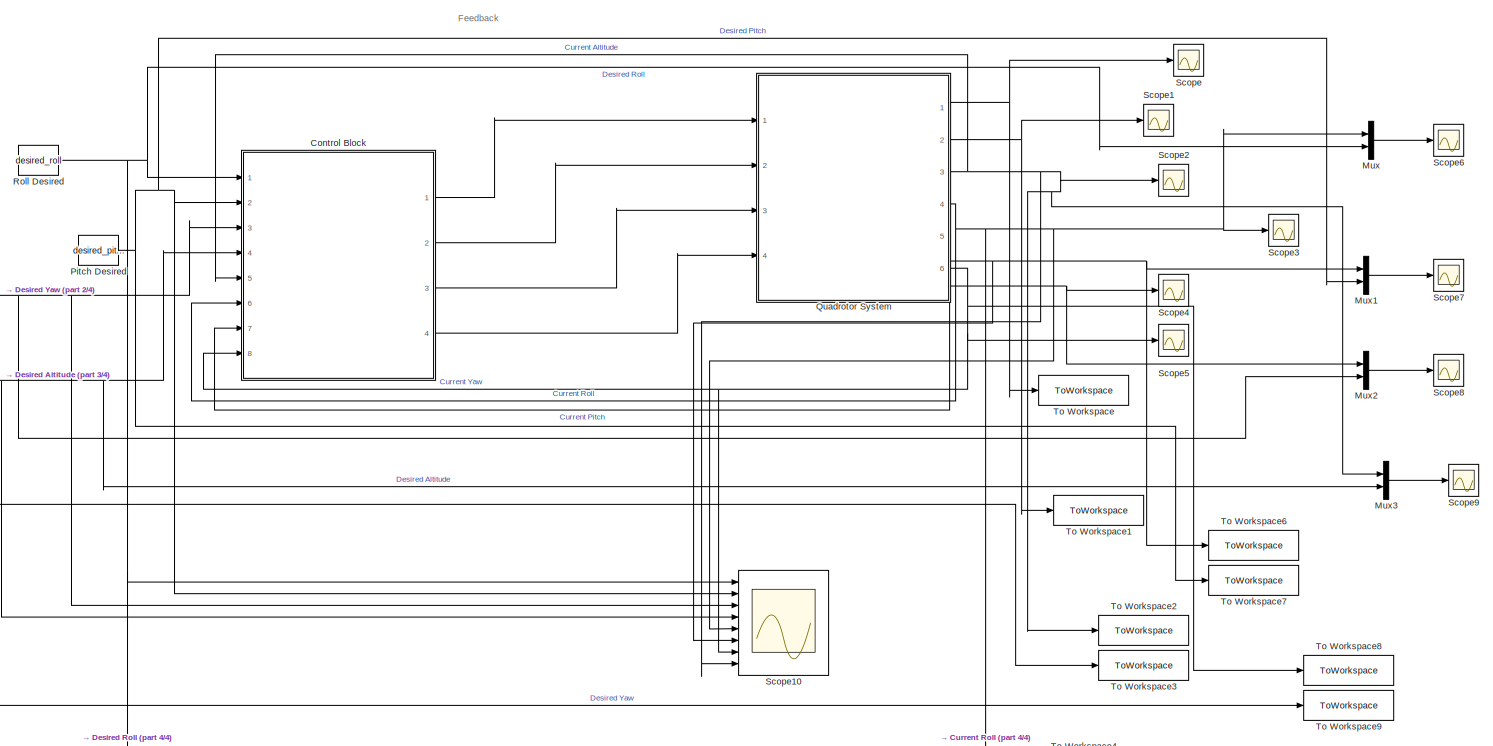
[diagram: root canvas - part 1/4, most of the canvas]
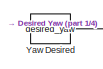
[diagram: root canvas - part 2/4, middle left region]
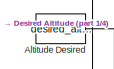
[diagram: root canvas - part 3/4, middle left region]
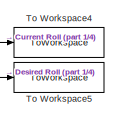
[diagram: root canvas - part 4/4, bottom right region]
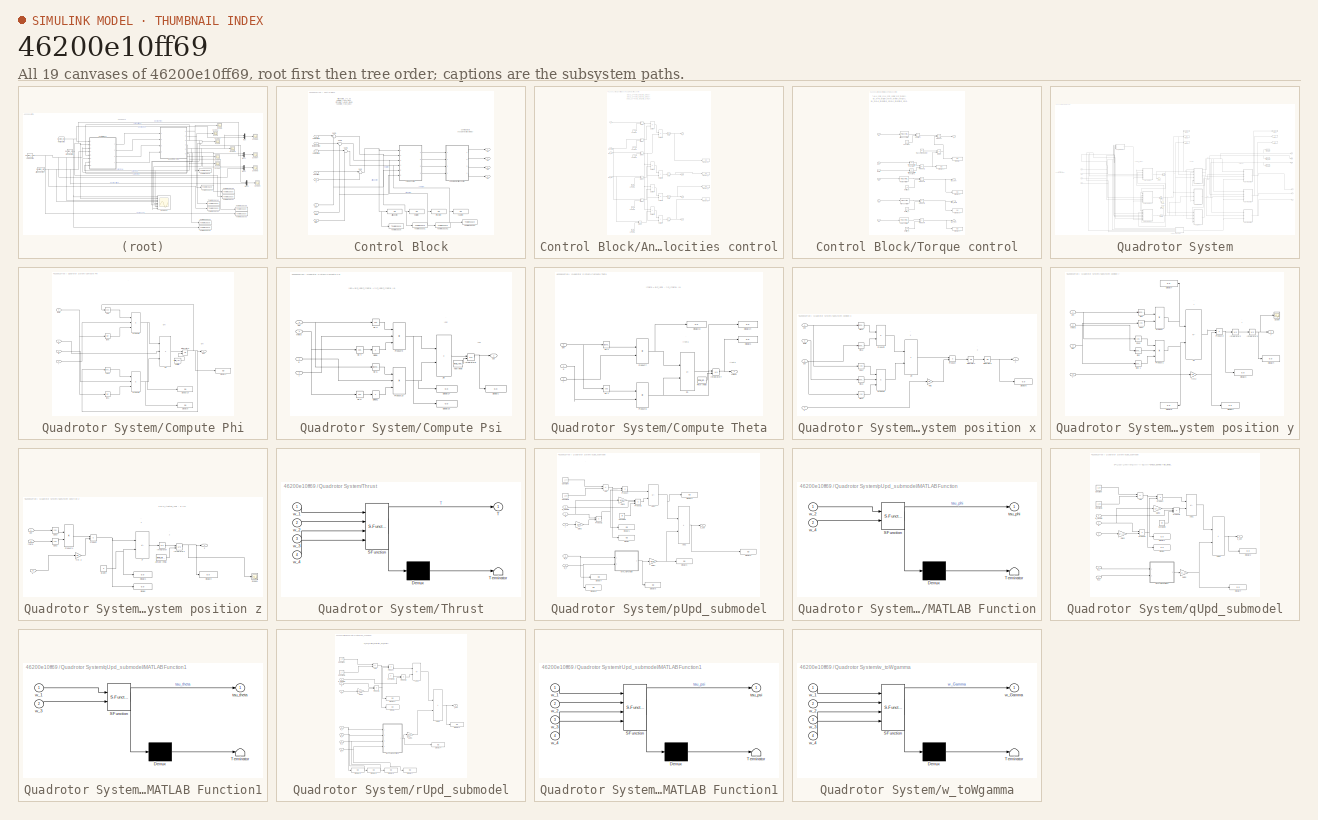
[diagram: thumbnail index - all 19 canvases of the model, root first then tree order]
MODEL slx_46200e10ff69
KIND model
CONFIG AbsTol = auto
CONFIG EnableMultiTasking = off
CONFIG FixedStep = auto
CONFIG MaxStep = 0.2
CONFIG MinStep = auto
CONFIG RelTol = 1e-3
CONFIG SampleTimeConstraint = Unconstrained
CONFIG SolverName = ode45
CONFIG StartTime = 0.0
CONFIG StopTime = 20
BLOCK [Constant] Altitude Desired
  Value = desired_altitude
BLOCK [SubSystem] Control Block
  Ports = [8, 4]
  RequestExecContextInheritance = off
BLOCK [Display] Control Block/Altitude error
  Decimation = 1
  Ports = [1]
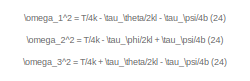
[diagram: Control Block/Angular velocities control - part 1/3, top left region]
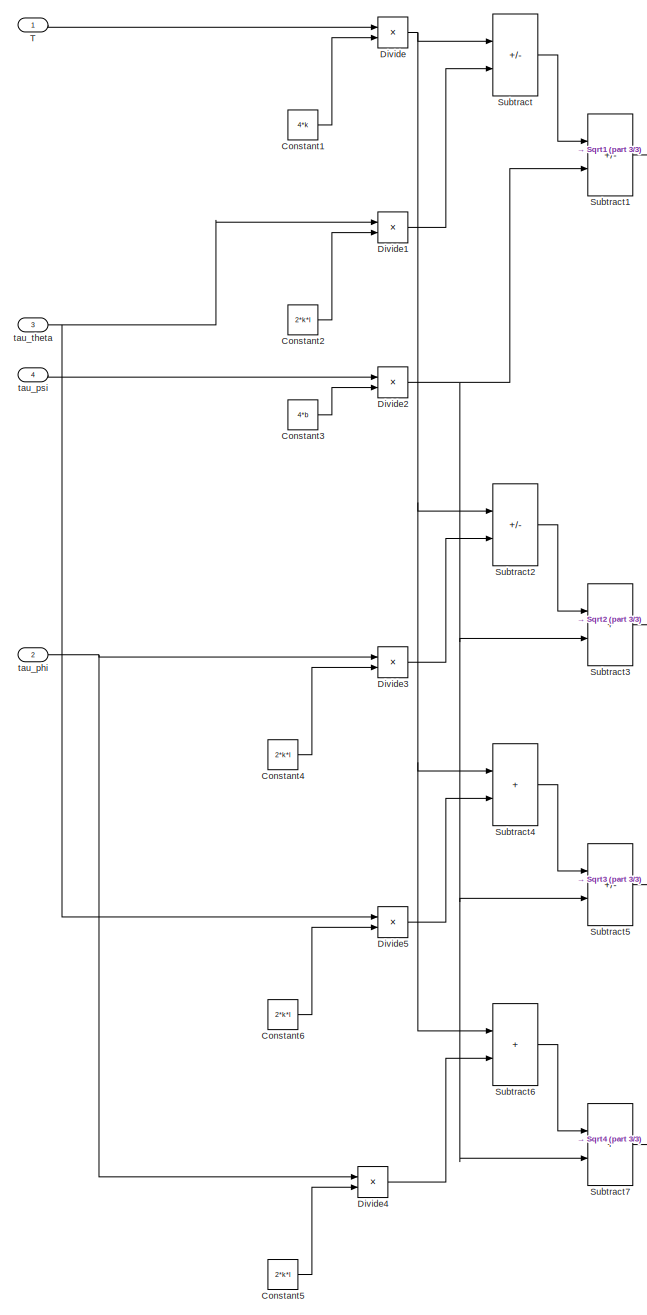
[diagram: Control Block/Angular velocities control - part 2/3, left side, full height]
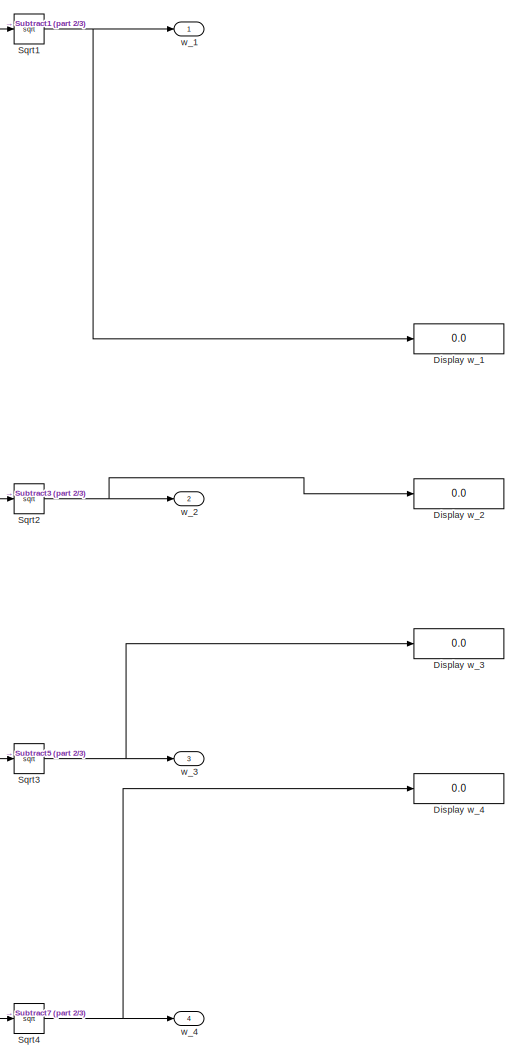
[diagram: Control Block/Angular velocities control - part 3/3, middle right region]
BLOCK [SubSystem] Control Block/Angular velocities control
  Ports = [4, 4]
  RequestExecContextInheritance = off
BLOCK [Constant] Control Block/Angular velocities control/Constant1
  Value = 4*k
BLOCK [Constant] Control Block/Angular velocities control/Constant2
  Value = 2*k*l
BLOCK [Constant] Control Block/Angular velocities control/Constant3
  Value = 4*b
BLOCK [Constant] Control Block/Angular velocities control/Constant4
  Value = 2*k*l
BLOCK [Constant] Control Block/Angular velocities control/Constant5
  Value = 2*k*l
BLOCK [Constant] Control Block/Angular velocities control/Constant6
  Value = 2*k*l
BLOCK [Display] Control Block/Angular velocities control/Display w_1
  Decimation = 1
  Ports = [1]
BLOCK [Display] Control Block/Angular velocities control/Display w_2
  Decimation = 1
  Ports = [1]
BLOCK [Display] Control Block/Angular velocities control/Display w_3
  Decimation = 1
  Ports = [1]
BLOCK [Display] Control Block/Angular velocities control/Display w_4
  Decimation = 1
  Ports = [1]
BLOCK [Product] Control Block/Angular velocities control/Divide
  Inputs = */
  Ports = [2, 1]
BLOCK [Product] Control Block/Angular velocities control/Divide1
  Inputs = */
  Ports = [2, 1]
BLOCK [Product] Control Block/Angular velocities control/Divide2
  Inputs = */
  Ports = [2, 1]
BLOCK [Product] Control Block/Angular velocities control/Divide3
  Inputs = */
  Ports = [2, 1]
BLOCK [Product] Control Block/Angular velocities control/Divide4
  Inputs = */
  Ports = [2, 1]
BLOCK [Product] Control Block/Angular velocities control/Divide5
  Inputs = */
  Ports = [2, 1]
BLOCK [Sqrt] Control Block/Angular velocities control/Sqrt1
BLOCK [Sqrt] Control Block/Angular velocities control/Sqrt2
  OutputSignalType = real
BLOCK [Sqrt] Control Block/Angular velocities control/Sqrt3
BLOCK [Sqrt] Control Block/Angular velocities control/Sqrt4
BLOCK [Sum] Control Block/Angular velocities control/Subtract
  IconShape = rectangular
  Inputs = +-
  Ports = [2, 1]
BLOCK [Sum] Control Block/Angular velocities control/Subtract1
  IconShape = rectangular
  Inputs = +-
  Ports = [2, 1]
BLOCK [Sum] Control Block/Angular velocities control/Subtract2
  IconShape = rectangular
  Inputs = +-
  Ports = [2, 1]
BLOCK [Sum] Control Block/Angular velocities control/Subtract3
  IconShape = rectangular
  Ports = [2, 1]
BLOCK [Sum] Control Block/Angular velocities control/Subtract4
  IconShape = rectangular
  Ports = [2, 1]
BLOCK [Sum] Control Block/Angular velocities control/Subtract5
  IconShape = rectangular
  Inputs = +-
  Ports = [2, 1]
BLOCK [Sum] Control Block/Angular velocities control/Subtract6
  IconShape = rectangular
  Ports = [2, 1]
BLOCK [Sum] Control Block/Angular velocities control/Subtract7
  IconShape = rectangular
  Ports = [2, 1]
BLOCK [Inport] Control Block/Angular velocities control/T
BLOCK [Inport] Control Block/Angular velocities control/tau_phi
  Port = 2
BLOCK [Inport] Control Block/Angular velocities control/tau_psi 
  Port = 4
BLOCK [Inport] Control Block/Angular velocities control/tau_theta
  Port = 3
BLOCK [Outport] Control Block/Angular velocities control/w_1
BLOCK [Outport] Control Block/Angular velocities control/w_2
  Port = 2
BLOCK [Outport] Control Block/Angular velocities control/w_3
  Port = 3
BLOCK [Outport] Control Block/Angular velocities control/w_4 
  Port = 4
BLOCK [Display] Control Block/Pitch error
  Decimation = 1
  Ports = [1]
BLOCK [Display] Control Block/Roll error
  Decimation = 1
  Ports = [1]
BLOCK [Sum] Control Block/Sum
  Inputs = |+-
  Ports = [2, 1]
BLOCK [Sum] Control Block/Sum1
  Inputs = |+-
  Ports = [2, 1]
BLOCK [Sum] Control Block/Sum2
  Inputs = |+-
  Ports = [2, 1]
BLOCK [Sum] Control Block/Sum3
  Inputs = |+-
  Ports = [2, 1]
BLOCK [ToWorkspace] Control Block/To Workspace
  FixptAsFi = on
  MaxDataPoints = inf
  Ports = [1]
  SampleTime = -1
  VariableName = err_altitude
BLOCK [ToWorkspace] Control Block/To Workspace1
  FixptAsFi = on
  MaxDataPoints = inf
  Ports = [1]
  SampleTime = -1
  VariableName = err_roll
BLOCK [ToWorkspace] Control Block/To Workspace2
  FixptAsFi = on
  MaxDataPoints = inf
  Ports = [1]
  SampleTime = -1
  VariableName = err_pitch
BLOCK [ToWorkspace] Control Block/To Workspace3
  FixptAsFi = on
  MaxDataPoints = inf
  Ports = [1]
  SampleTime = -1
  VariableName = err_yaw
BLOCK [SubSystem] Control Block/Torque control
  Ports = [6, 4]
  RequestExecContextInheritance = off
BLOCK [Reference] Control Block/Torque control/Altitude controller  REF=slpidlib/PID Controller
  Ports = [1, 1]
  SourceBlock = slpidlib/PID Controller
  SourceProductBaseCode = SL
  SourceType = PID 1dof
BLOCK [Constant] Control Block/Torque control/Constant
  Value = g
BLOCK [Display] Control Block/Torque control/Display
  Decimation = 1
  Ports = [1]
BLOCK [Display] Control Block/Torque control/Display1
  Decimation = 1
  Ports = [1]
BLOCK [Display] Control Block/Torque control/Display2
  Decimation = 1
  Ports = [1]
BLOCK [Display] Control Block/Torque control/Display3
  Decimation = 1
  Ports = [1]
BLOCK [Display] Control Block/Torque control/Display4
  Decimation = 1
  Ports = [1]
BLOCK [Product] Control Block/Torque control/Divide
  Inputs = */
  Ports = [2, 1]
BLOCK [Constant] Control Block/Torque control/Inertia_x
  Value = I_xx
BLOCK [Constant] Control Block/Torque control/Inertia_y
  Value = I_yy
BLOCK [Constant] Control Block/Torque control/Inertia_z
  Value = I_zz
BLOCK [Reference] Control Block/Torque control/Pitch controller  REF=slpidlib/PID Controller
  Ports = [1, 1]
  SourceBlock = slpidlib/PID Controller
  SourceProductBaseCode = SL
  SourceType = PID 1dof
BLOCK [Product] Control Block/Torque control/Product
  Ports = [2, 1]
BLOCK [Product] Control Block/Torque control/Product1
  Ports = [2, 1]
BLOCK [Product] Control Block/Torque control/Product2
  Ports = [2, 1]
BLOCK [Product] Control Block/Torque control/Product3
  Ports = [2, 1]
BLOCK [Product] Control Block/Torque control/Product4
  Ports = [2, 1]
BLOCK [Reference] Control Block/Torque control/Roll controller  REF=slpidlib/PID Controller
  Ports = [1, 1]
  SourceBlock = slpidlib/PID Controller
  SourceProductBaseCode = SL
  SourceType = PID 1dof
BLOCK [Sum] Control Block/Torque control/Subtract
  IconShape = rectangular
  Ports = [2, 1]
BLOCK [Outport] Control Block/Torque control/T
BLOCK [Trigonometry] Control Block/Torque control/Trigonometric Function
  Operator = cos
  Ports = [1, 1]
BLOCK [Trigonometry] Control Block/Torque control/Trigonometric Function1
  Operator = cos
  Ports = [1, 1]
BLOCK [Reference] Control Block/Torque control/Yaw controller  REF=slpidlib/PID Controller
  Ports = [1, 1]
  SourceBlock = slpidlib/PID Controller
  SourceProductBaseCode = SL
  SourceType = PID 1dof
BLOCK [Inport] Control Block/Torque control/e1
BLOCK [Inport] Control Block/Torque control/e2
  Port = 2
BLOCK [Inport] Control Block/Torque control/e3
  Port = 3
BLOCK [Inport] Control Block/Torque control/e4
  Port = 4
BLOCK [Constant] Control Block/Torque control/mass of quadrotor
  Value = m
BLOCK [Inport] Control Block/Torque control/phi 
  Port = 5
BLOCK [Outport] Control Block/Torque control/tau_phi
  Port = 2
BLOCK [Outport] Control Block/Torque control/tau_psi
  Port = 4
BLOCK [Outport] Control Block/Torque control/tau_theta
  Port = 3
BLOCK [Inport] Control Block/Torque control/theta 
  Port = 6
BLOCK [Display] Control Block/Yaw error
  Decimation = 1
  Ports = [1]
BLOCK [Inport] Control Block/phi
  Port = 6
BLOCK [Inport] Control Block/phi desired
BLOCK [Inport] Control Block/psi
  Port = 8
BLOCK [Inport] Control Block/psi desired
  Port = 3
BLOCK [Inport] Control Block/theta
  Port = 7
BLOCK [Inport] Control Block/theta desired
  Port = 2
BLOCK [Outport] Control Block/u1
BLOCK [Outport] Control Block/u2
  Port = 2
BLOCK [Outport] Control Block/u3
  Port = 3
BLOCK [Outport] Control Block/u4
  Port = 4
BLOCK [Inport] Control Block/z
  Port = 5
BLOCK [Inport] Control Block/z desired
  Port = 4
BLOCK [Mux] Mux
  DisplayOption = bar
  Inputs = 2
  Ports = [2, 1]
BLOCK [Mux] Mux1
  DisplayOption = bar
  Inputs = 2
  Ports = [2, 1]
BLOCK [Mux] Mux2
  DisplayOption = bar
  Inputs = 2
  Ports = [2, 1]
BLOCK [Mux] Mux3
  DisplayOption = bar
  Inputs = 2
  Ports = [2, 1]
BLOCK [Constant] Pitch Desired
  Value = desired_pitch
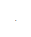
[diagram: Quadrotor System - part 1/9, top center region]
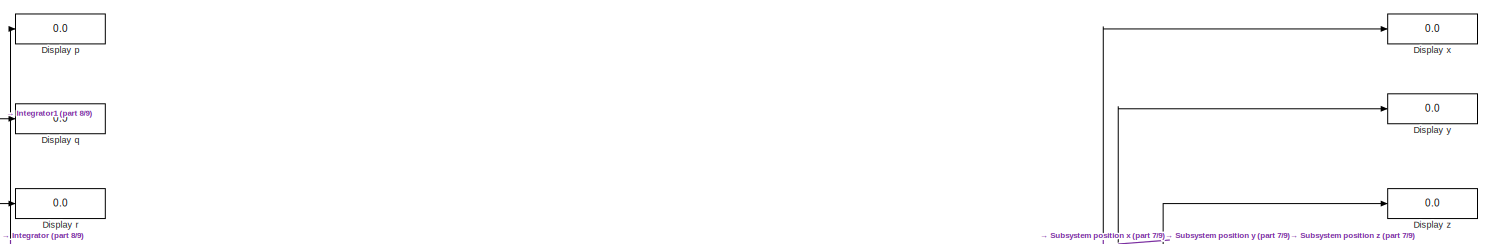
[diagram: Quadrotor System - part 2/9, top right region]
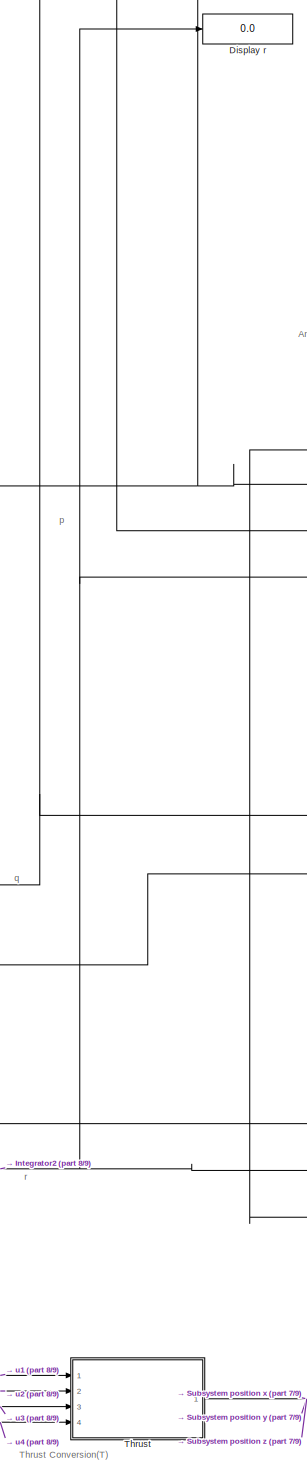
[diagram: Quadrotor System - part 3/9, central region]
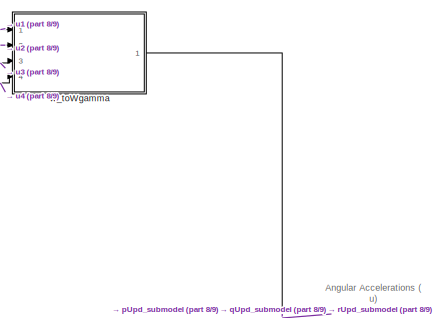
[diagram: Quadrotor System - part 4/9, middle left region]
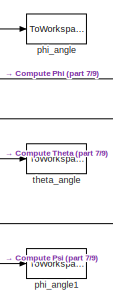
[diagram: Quadrotor System - part 5/9, middle right region]
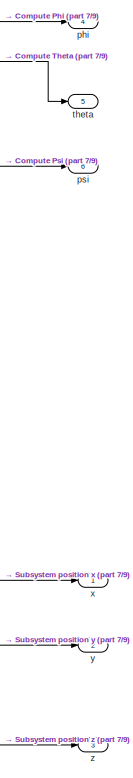
[diagram: Quadrotor System - part 6/9, middle right region]
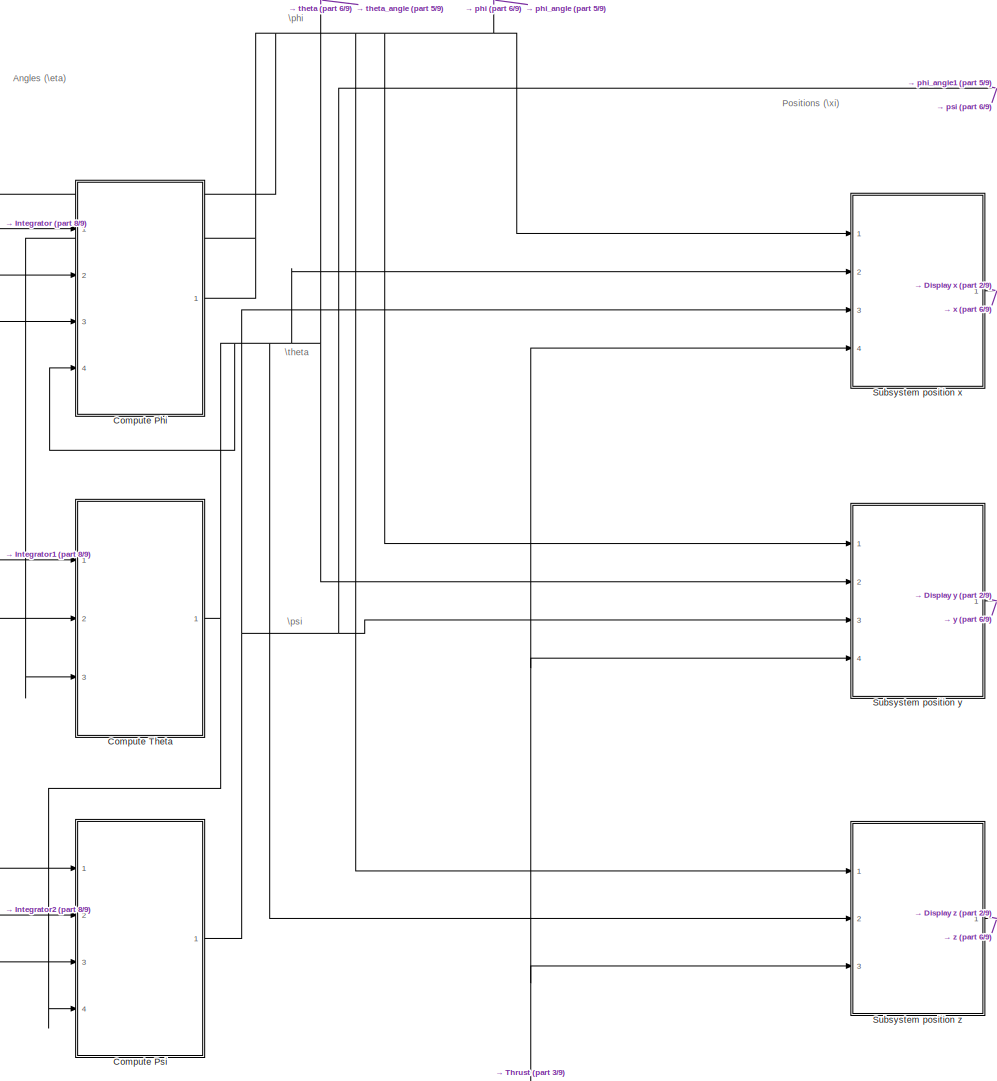
[diagram: Quadrotor System - part 7/9, middle right region]
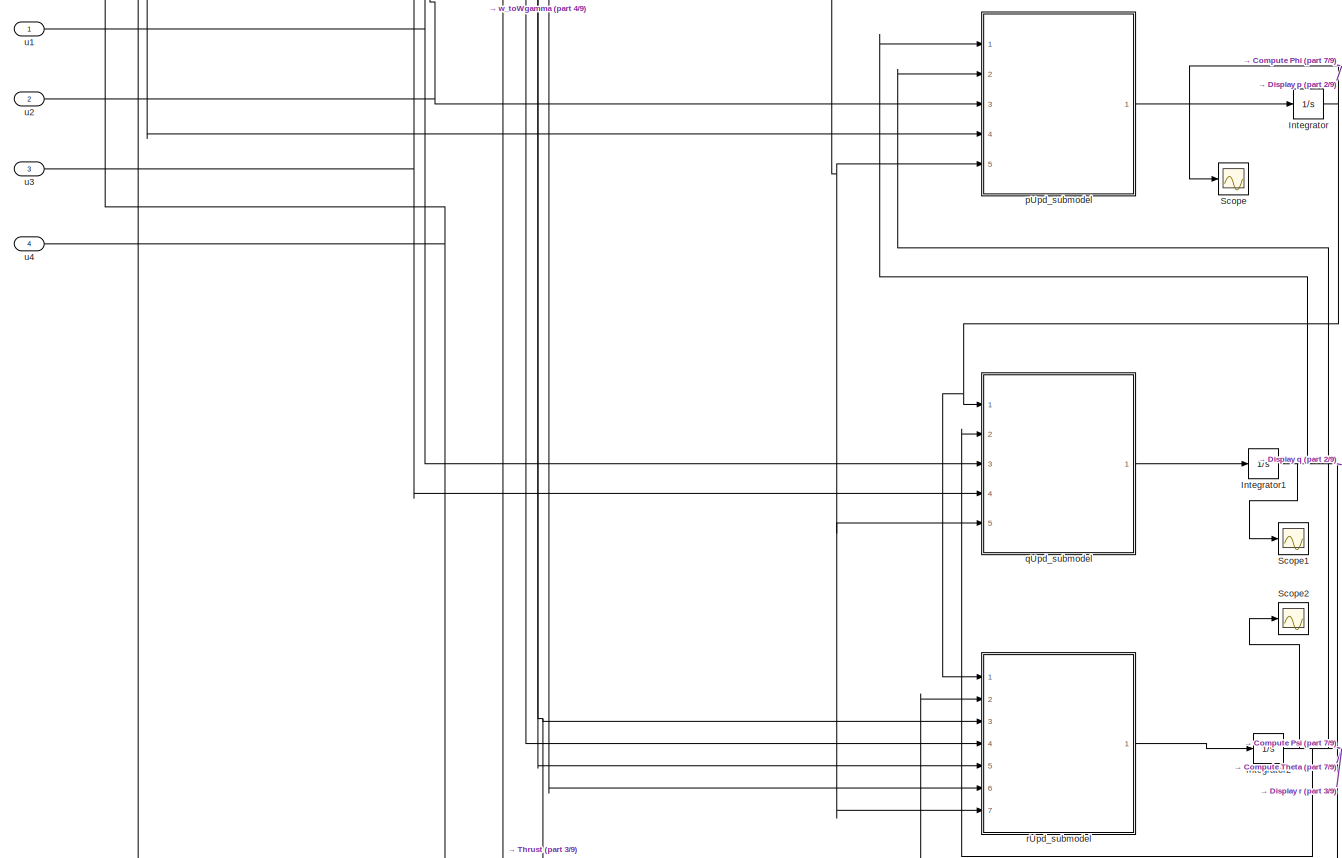
[diagram: Quadrotor System - part 8/9, bottom left region]
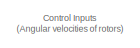
[diagram: Quadrotor System - part 9/9, middle left region]
BLOCK [SubSystem] Quadrotor System
  Ports = [4, 6]
  RequestExecContextInheritance = off
BLOCK [SubSystem] Quadrotor System/Compute Phi
  Ports = [4, 1]
  RequestExecContextInheritance = off
BLOCK [Display] Quadrotor System/Compute Phi/Display1
  Decimation = 1
  Ports = [1]
BLOCK [Display] Quadrotor System/Compute Phi/Display10
  Decimation = 1
  Ports = [1]
BLOCK [Display] Quadrotor System/Compute Phi/Display9
  Decimation = 1
  Ports = [1]
BLOCK [Integrator] Quadrotor System/Compute Phi/Integrator6
  InitialCondition = -0.1
  InitialConditionSource = external
  Ports = [2, 1]
BLOCK [Product] Quadrotor System/Compute Phi/Product5
  Inputs = 3
  Ports = [3, 1]
BLOCK [Product] Quadrotor System/Compute Phi/Product6
  Inputs = 3
  Ports = [3, 1]
BLOCK [Constant] Quadrotor System/Compute Phi/Roll Initial
  Value = initial_roll_angle
BLOCK [Sum] Quadrotor System/Compute Phi/Z''3
  IconShape = rectangular
  Inputs = +++
  Ports = [3, 1]
BLOCK [Trigonometry] Quadrotor System/Compute Phi/cos 
  Operator = cos
  Ports = [1, 1]
BLOCK [Trigonometry] Quadrotor System/Compute Phi/cos 1
  Ports = [1, 1]
BLOCK [Inport] Quadrotor System/Compute Phi/p
BLOCK [Outport] Quadrotor System/Compute Phi/phi 
BLOCK [Inport] Quadrotor System/Compute Phi/q
  Port = 2
BLOCK [Inport] Quadrotor System/Compute Phi/r
  Port = 3
BLOCK [Trigonometry] Quadrotor System/Compute Phi/tan 1
  Operator = tan
  Ports = [1, 1]
BLOCK [Trigonometry] Quadrotor System/Compute Phi/tan 5
  Operator = tan
  Ports = [1, 1]
BLOCK [Inport] Quadrotor System/Compute Phi/theta
  Port = 4
BLOCK [SubSystem] Quadrotor System/Compute Psi
  Ports = [4, 1]
  RequestExecContextInheritance = off
BLOCK [Display] Quadrotor System/Compute Psi/Display1
  Decimation = 1
  Ports = [1]
BLOCK [Display] Quadrotor System/Compute Psi/Display16
  Decimation = 1
  Ports = [1]
BLOCK [Display] Quadrotor System/Compute Psi/Display17
  Decimation = 1
  Ports = [1]
BLOCK [Product] Quadrotor System/Compute Psi/Divide
  Inputs = /
  Ports = [1, 1]
BLOCK [Product] Quadrotor System/Compute Psi/Divide1
  Inputs = /
  Ports = [1, 1]
BLOCK [Integrator] Quadrotor System/Compute Psi/Integrator8
  InitialCondition = -pi
  InitialConditionSource = external
  Ports = [2, 1]
BLOCK [Product] Quadrotor System/Compute Psi/Product10
  Inputs = 3
  Ports = [3, 1]
BLOCK [Product] Quadrotor System/Compute Psi/Product9
  Inputs = 3
  Ports = [3, 1]
BLOCK [Constant] Quadrotor System/Compute Psi/Yaw Initial
  Value = initial_yaw_angle
BLOCK [Sum] Quadrotor System/Compute Psi/Z''5
  IconShape = rectangular
  Ports = [2, 1]
BLOCK [Inport] Quadrotor System/Compute Psi/phi
  Port = 3
BLOCK [Outport] Quadrotor System/Compute Psi/psi
BLOCK [Inport] Quadrotor System/Compute Psi/q
BLOCK [Inport] Quadrotor System/Compute Psi/r
  Port = 2
BLOCK [Trigonometry] Quadrotor System/Compute Psi/sin 3
  Operator = cos
  Ports = [1, 1]
BLOCK [Trigonometry] Quadrotor System/Compute Psi/sin 4
  Operator = cos
  Ports = [1, 1]
BLOCK [Trigonometry] Quadrotor System/Compute Psi/sin 5
  Ports = [1, 1]
BLOCK [Trigonometry] Quadrotor System/Compute Psi/sin 6
  Operator = cos
  Ports = [1, 1]
BLOCK [Inport] Quadrotor System/Compute Psi/theta
  Port = 4
BLOCK [SubSystem] Quadrotor System/Compute Theta
  Ports = [3, 1]
  RequestExecContextInheritance = off
BLOCK [Display] Quadrotor System/Compute Theta/Display1
  Decimation = 1
  Ports = [1]
BLOCK [Display] Quadrotor System/Compute Theta/Display13
  Decimation = 1
  Ports = [1]
BLOCK [Display] Quadrotor System/Compute Theta/Display14
  Decimation = 1
  Ports = [1]
BLOCK [Integrator] Quadrotor System/Compute Theta/Integrator7
  InitialCondition = -0.09
  InitialConditionSource = external
  Ports = [2, 1]
BLOCK [Constant] Quadrotor System/Compute Theta/Pitch Initial
  Value = initial_pitch_angle
BLOCK [Product] Quadrotor System/Compute Theta/Product7
  Ports = [2, 1]
BLOCK [Product] Quadrotor System/Compute Theta/Product8
  Ports = [2, 1]
BLOCK [Sum] Quadrotor System/Compute Theta/Z''4
  IconShape = rectangular
  Inputs = -+
  Ports = [2, 1]
BLOCK [Inport] Quadrotor System/Compute Theta/phi 
  Port = 3
BLOCK [Inport] Quadrotor System/Compute Theta/q
BLOCK [Inport] Quadrotor System/Compute Theta/r
  Port = 2
BLOCK [Trigonometry] Quadrotor System/Compute Theta/sin 1
  Operator = cos
  Ports = [1, 1]
BLOCK [Trigonometry] Quadrotor System/Compute Theta/sin 2
  Ports = [1, 1]
BLOCK [Outport] Quadrotor System/Compute Theta/theta
BLOCK [Display] Quadrotor System/Display p
  Decimation = 1
  Ports = [1]
BLOCK [Display] Quadrotor System/Display q
  Decimation = 1
  Ports = [1]
BLOCK [Display] Quadrotor System/Display r
  Decimation = 1
  Ports = [1]
BLOCK [Display] Quadrotor System/Display x
  Decimation = 1
  Ports = [1]
BLOCK [Display] Quadrotor System/Display y
  Decimation = 1
  Ports = [1]
BLOCK [Display] Quadrotor System/Display z
  Decimation = 1
  Ports = [1]
BLOCK [Integrator] Quadrotor System/Integrator
  Ports = [1, 1]
BLOCK [Integrator] Quadrotor System/Integrator1
  Ports = [1, 1]
BLOCK [Integrator] Quadrotor System/Integrator2
  Ports = [1, 1]
BLOCK [Scope] Quadrotor System/Scope
  Floating = off
  NumInputPorts = 1
  Ports = [1]
  ScopeSpecificationString = Simulink.scopes.TimeScopeBlockCfg('CurrentConfiguration', extmgr.ConfigurationSet(extmgr.Configuration('Core','General UI',true),extmgr.Configuration('Core','Source UI',true),extmgr.Configuration('Sources','WiredSimulink',true,'DataLoggingVariableName','ScopeData1'),extmgr.Configuration('Visuals','Time Domain',true,'SerializedDisplays',{struct('MinYLimReal','-1.00000','MaxYLimReal','1.00000','YLab...<+1398ch>
BLOCK [Scope] Quadrotor System/Scope1
  Floating = off
  NumInputPorts = 1
  Ports = [1]
  ScopeSpecificationString = Simulink.scopes.TimeScopeBlockCfg('CurrentConfiguration', extmgr.ConfigurationSet(extmgr.Configuration('Core','General UI',true),extmgr.Configuration('Core','Source UI',true),extmgr.Configuration('Sources','WiredSimulink',true,'DataLoggingVariableName','ScopeData2'),extmgr.Configuration('Visuals','Time Domain',true),extmgr.Configuration('Tools','Plot Navigation',true),extmgr.Configuration('Tools',...<+40ch>
BLOCK [Scope] Quadrotor System/Scope2
  Floating = off
  NumInputPorts = 1
  Ports = [1]
  ScopeSpecificationString = Simulink.scopes.TimeScopeBlockCfg('CurrentConfiguration', extmgr.ConfigurationSet(extmgr.Configuration('Core','General UI',true),extmgr.Configuration('Core','Source UI',true),extmgr.Configuration('Sources','WiredSimulink',true,'DataLoggingVariableName','ScopeData3'),extmgr.Configuration('Visuals','Time Domain',true,'SerializedDisplays',{struct('MinYLimReal','-0.00029','MaxYLimReal','0.00003','YLab...<+1370ch>
BLOCK [SubSystem] Quadrotor System/Subsystem position x
  Ports = [4, 1]
  RequestExecContextInheritance = off
BLOCK [Trigonometry] Quadrotor System/Subsystem position x/Cos1
  Operator = cos
  Ports = [1, 1]
BLOCK [Display] Quadrotor System/Subsystem position x/Display6
  Decimation = 1
  Ports = [1]
BLOCK [Integrator] Quadrotor System/Subsystem position x/Integrator4
  Ports = [1, 1]
BLOCK [Integrator] Quadrotor System/Subsystem position x/Integrator5
  Ports = [1, 1]
BLOCK [Product] Quadrotor System/Subsystem position x/Product
  Ports = [2, 1]
BLOCK [Product] Quadrotor System/Subsystem position x/Product2
  Ports = [2, 1]
BLOCK [Product] Quadrotor System/Subsystem position x/Product3
  Inputs = 3
  Ports = [3, 1]
BLOCK [Trigonometry] Quadrotor System/Subsystem position x/Sin1 1
  Ports = [1, 1]
BLOCK [Trigonometry] Quadrotor System/Subsystem position x/Sin1 2
  Ports = [1, 1]
BLOCK [Trigonometry] Quadrotor System/Subsystem position x/Sin1 3
  Ports = [1, 1]
BLOCK [Trigonometry] Quadrotor System/Subsystem position x/Sin1 4
  Operator = cos
  Ports = [1, 1]
BLOCK [Inport] Quadrotor System/Subsystem position x/T
  Port = 4
BLOCK [Gain] Quadrotor System/Subsystem position x/T//m 2
  Gain = 1/m
BLOCK [Sum] Quadrotor System/Subsystem position x/Z''2
  IconShape = rectangular
  Ports = [2, 1]
BLOCK [Inport] Quadrotor System/Subsystem position x/phi 
BLOCK [Inport] Quadrotor System/Subsystem position x/psi 
  Port = 3
BLOCK [Inport] Quadrotor System/Subsystem position x/theta 
  Port = 2
BLOCK [Outport] Quadrotor System/Subsystem position x/x
BLOCK [SubSystem] Quadrotor System/Subsystem position y
  Ports = [4, 1]
  RequestExecContextInheritance = off
BLOCK [Trigonometry] Quadrotor System/Subsystem position y/Cos4
  Operator = cos
  Ports = [1, 1]
BLOCK [Trigonometry] Quadrotor System/Subsystem position y/Cos5
  Operator = cos
  Ports = [1, 1]
BLOCK [Display] Quadrotor System/Subsystem position y/Display1
  Decimation = 1
  Ports = [1]
BLOCK [Display] Quadrotor System/Subsystem position y/Display3
  Decimation = 1
  Ports = [1]
BLOCK [Display] Quadrotor System/Subsystem position y/Display4
  Decimation = 1
  Ports = [1]
BLOCK [Display] Quadrotor System/Subsystem position y/Display7
  Decimation = 1
  NameLocation = top
  Ports = [1]
BLOCK [Display] Quadrotor System/Subsystem position y/Display8
  Decimation = 1
  NameLocation = top
  Ports = [1]
BLOCK [Integrator] Quadrotor System/Subsystem position y/Integrator2
  Ports = [1, 1]
BLOCK [Integrator] Quadrotor System/Subsystem position y/Integrator3
  Ports = [1, 1]
BLOCK [Product] Quadrotor System/Subsystem position y/Product
  Ports = [2, 1]
BLOCK [Product] Quadrotor System/Subsystem position y/Product1
  Inputs = 3
  Ports = [3, 1]
BLOCK [Product] Quadrotor System/Subsystem position y/Product2
  Ports = [2, 1]
BLOCK [Scope] Quadrotor System/Subsystem position y/Scope
  Floating = off
  NumInputPorts = 1
  Ports = [1]
  ScopeSpecificationString = Simulink.scopes.TimeScopeBlockCfg('CurrentConfiguration', extmgr.ConfigurationSet(extmgr.Configuration('Core','General UI',true),extmgr.Configuration('Core','Source UI',true),extmgr.Configuration('Sources','WiredSimulink',true),extmgr.Configuration('Visuals','Time Domain',true,'SerializedDisplays',{struct('MinYLimReal','-1179.08654','MaxYLimReal','131.00962','YLabelReal','','MinYLimMag','  0.00000...<+1453ch>
BLOCK [Trigonometry] Quadrotor System/Subsystem position y/Sin1 
  Ports = [1, 1]
BLOCK [Trigonometry] Quadrotor System/Subsystem position y/Sin2 
  Ports = [1, 1]
BLOCK [Trigonometry] Quadrotor System/Subsystem position y/Sin2 1
  Ports = [1, 1]
BLOCK [Inport] Quadrotor System/Subsystem position y/T 
  Port = 4
BLOCK [Gain] Quadrotor System/Subsystem position y/T//m 2
  Gain = 1/m
BLOCK [Sum] Quadrotor System/Subsystem position y/Z''1
  IconShape = rectangular
  Inputs = -+
  Ports = [2, 1]
BLOCK [Inport] Quadrotor System/Subsystem position y/phi 
BLOCK [Inport] Quadrotor System/Subsystem position y/psi 
  Port = 3
BLOCK [Inport] Quadrotor System/Subsystem position y/theta 
  Port = 2
BLOCK [Outport] Quadrotor System/Subsystem position y/y 
BLOCK [SubSystem] Quadrotor System/Subsystem position z
  Ports = [3, 1]
  RequestExecContextInheritance = off
BLOCK [Constant] Quadrotor System/Subsystem position z/Altitude Initial
  Value = initial_altitude
BLOCK [Trigonometry] Quadrotor System/Subsystem position z/Cos2
  Operator = cos
  Ports = [1, 1]
BLOCK [Trigonometry] Quadrotor System/Subsystem position z/Cos3
  Operator = cos
  Ports = [1, 1]
BLOCK [Display] Quadrotor System/Subsystem position z/Display
  Decimation = 1
  Ports = [1]
BLOCK [Display] Quadrotor System/Subsystem position z/Display1
  Decimation = 1
  Ports = [1]
BLOCK [Display] Quadrotor System/Subsystem position z/Display2
  Decimation = 1
  Ports = [1]
BLOCK [Constant] Quadrotor System/Subsystem position z/Gravity
  Value = g
BLOCK [Integrator] Quadrotor System/Subsystem position z/Integrator
  Ports = [1, 1]
BLOCK [Integrator] Quadrotor System/Subsystem position z/Integrator1
  InitialConditionSource = external
  Ports = [2, 1]
BLOCK [Product] Quadrotor System/Subsystem position z/Product
  Ports = [2, 1]
BLOCK [Product] Quadrotor System/Subsystem position z/Product4
  Ports = [2, 1]
BLOCK [Scope] Quadrotor System/Subsystem position z/Scope1
  Floating = off
  NumInputPorts = 1
  Ports = [1]
  ScopeSpecificationString = Simulink.scopes.TimeScopeBlockCfg('CurrentConfiguration', extmgr.ConfigurationSet(extmgr.Configuration('Core','General UI',true),extmgr.Configuration('Core','Source UI',true),extmgr.Configuration('Sources','WiredSimulink',true,'DataLoggingVariableName','ScopeData1'),extmgr.Configuration('Visuals','Time Domain',true,'SerializedDisplays',{struct('MinYLimReal','-1.00000','MaxYLimReal','1.00000','YLab...<+1443ch>
BLOCK [Inport] Quadrotor System/Subsystem position z/T
  Port = 3
BLOCK [Gain] Quadrotor System/Subsystem position z/T//m 2
  Gain = 1/m
BLOCK [Sum] Quadrotor System/Subsystem position z/Z''
  IconShape = rectangular
  Inputs = +-
  Ports = [2, 1]
BLOCK [Inport] Quadrotor System/Subsystem position z/phi 
BLOCK [Inport] Quadrotor System/Subsystem position z/theta 
  Port = 2
BLOCK [Outport] Quadrotor System/Subsystem position z/z
BLOCK [SubSystem] Quadrotor System/Thrust
  ErrorFcn = Stateflow.Translate.translate
  PermitHierarchicalResolution = ExplicitOnly
  Ports = [4, 1]
  RequestExecContextInheritance = off
  SFBlockType = MATLAB Function
  TreatAsAtomicUnit = on
BLOCK [Demux] Quadrotor System/Thrust/ Demux 
  Outputs = 1
  Ports = [1, 1]
BLOCK [S-Function] Quadrotor System/Thrust/ SFunction 
  EnableBusSupport = on
  FunctionName = sf_sfun
  PortCounts = [4 2]
  Ports = [4, 2]
  SFcnIsStateOwnerBlock = off
  SFunctionDeploymentMode = off
  Tag = Stateflow S-Function 4
BLOCK [Terminator] Quadrotor System/Thrust/ Terminator 
BLOCK [Outport] Quadrotor System/Thrust/T
BLOCK [Inport] Quadrotor System/Thrust/w_1
BLOCK [Inport] Quadrotor System/Thrust/w_2
  Port = 2
BLOCK [Inport] Quadrotor System/Thrust/w_3
  Port = 3
BLOCK [Inport] Quadrotor System/Thrust/w_4
  Port = 4
BLOCK [SubSystem] Quadrotor System/pUpd_submodel
  Ports = [5, 1]
  RequestExecContextInheritance = off
BLOCK [Sum] Quadrotor System/pUpd_submodel/Add
  IconShape = rectangular
  Inputs = +-
  Ports = [2, 1]
BLOCK [Sum] Quadrotor System/pUpd_submodel/Add1
  IconShape = rectangular
  Inputs = +-
  Ports = [2, 1]
BLOCK [Sum] Quadrotor System/pUpd_submodel/Add2
  IconShape = rectangular
  Ports = [2, 1]
BLOCK [Constant] Quadrotor System/pUpd_submodel/Constant
  Value = I_yy
BLOCK [Constant] Quadrotor System/pUpd_submodel/Constant1
  Value = I_zz
BLOCK [Constant] Quadrotor System/pUpd_submodel/Constant2
  Value = Im
BLOCK [Display] Quadrotor System/pUpd_submodel/Display
  Decimation = 1
  Ports = [1]
BLOCK [Display] Quadrotor System/pUpd_submodel/Display1
  Decimation = 1
  Ports = [1]
BLOCK [Display] Quadrotor System/pUpd_submodel/Display2
  Decimation = 1
  Ports = [1]
BLOCK [Display] Quadrotor System/pUpd_submodel/Display3
  Decimation = 1
  Ports = [1]
BLOCK [Display] Quadrotor System/pUpd_submodel/Display4
  Decimation = 1
  Ports = [1]
BLOCK [Display] Quadrotor System/pUpd_submodel/Display5
  Decimation = 1
  Ports = [1]
BLOCK [Display] Quadrotor System/pUpd_submodel/Display6
  Decimation = 1
  Ports = [1]
BLOCK [Display] Quadrotor System/pUpd_submodel/Display7
  Decimation = 1
  Ports = [1]
BLOCK [Gain] Quadrotor System/pUpd_submodel/Gain2
  Gain = 1/I_xx
BLOCK [Gain] Quadrotor System/pUpd_submodel/Gain3
  Gain = 1/I_xx
BLOCK [Gain] Quadrotor System/pUpd_submodel/Gain4
  Gain = 1/I_xx
BLOCK [SubSystem] Quadrotor System/pUpd_submodel/MATLAB Function
  ErrorFcn = Stateflow.Translate.translate
  PermitHierarchicalResolution = ExplicitOnly
  Ports = [2, 1]
  RequestExecContextInheritance = off
  SFBlockType = MATLAB Function
  TreatAsAtomicUnit = on
BLOCK [Demux] Quadrotor System/pUpd_submodel/MATLAB Function/ Demux 
  Outputs = 1
  Ports = [1, 1]
BLOCK [S-Function] Quadrotor System/pUpd_submodel/MATLAB Function/ SFunction 
  EnableBusSupport = on
  FunctionName = sf_sfun
  PortCounts = [2 2]
  Ports = [2, 2]
  SFcnIsStateOwnerBlock = off
  SFunctionDeploymentMode = off
  Tag = Stateflow S-Function 2
BLOCK [Terminator] Quadrotor System/pUpd_submodel/MATLAB Function/ Terminator 
BLOCK [Outport] Quadrotor System/pUpd_submodel/MATLAB Function/tau_phi
BLOCK [Inport] Quadrotor System/pUpd_submodel/MATLAB Function/w_2
BLOCK [Inport] Quadrotor System/pUpd_submodel/MATLAB Function/w_4
  Port = 2
BLOCK [Product] Quadrotor System/pUpd_submodel/Product
  Ports = [2, 1]
BLOCK [Product] Quadrotor System/pUpd_submodel/Product1
  Ports = [2, 1]
BLOCK [Product] Quadrotor System/pUpd_submodel/Product2
  Inputs = 3
  Ports = [3, 1]
BLOCK [Outport] Quadrotor System/pUpd_submodel/p_dot
BLOCK [Inport] Quadrotor System/pUpd_submodel/q
BLOCK [Inport] Quadrotor System/pUpd_submodel/r
  Port = 2
BLOCK [Inport] Quadrotor System/pUpd_submodel/w_2
  Port = 3
BLOCK [Inport] Quadrotor System/pUpd_submodel/w_4
  Port = 4
BLOCK [Inport] Quadrotor System/pUpd_submodel/w_Gamma 
  Port = 5
BLOCK [Outport] Quadrotor System/phi
  Port = 4
BLOCK [ToWorkspace] Quadrotor System/phi_angle
  FixptAsFi = on
  MaxDataPoints = inf
  Ports = [1]
  SampleTime = -1
  VariableName = roll
BLOCK [ToWorkspace] Quadrotor System/phi_angle1
  FixptAsFi = on
  MaxDataPoints = inf
  Ports = [1]
  SampleTime = -1
  VariableName = yaw
BLOCK [Outport] Quadrotor System/psi
  Port = 6
BLOCK [SubSystem] Quadrotor System/qUpd_submodel
  Ports = [5, 1]
  RequestExecContextInheritance = off
BLOCK [Sum] Quadrotor System/qUpd_submodel/Add
  IconShape = rectangular
  Inputs = +-
  Ports = [2, 1]
BLOCK [Sum] Quadrotor System/qUpd_submodel/Add1
  IconShape = rectangular
  Inputs = +-
  Ports = [2, 1]
BLOCK [Sum] Quadrotor System/qUpd_submodel/Add3
  IconShape = rectangular
  Ports = [2, 1]
BLOCK [Constant] Quadrotor System/qUpd_submodel/Constant
  Value = I_zz
BLOCK [Constant] Quadrotor System/qUpd_submodel/Constant1
  Value = I_xx
BLOCK [Constant] Quadrotor System/qUpd_submodel/Constant3
  Value = Im
BLOCK [Display] Quadrotor System/qUpd_submodel/Display
  Decimation = 1
  Ports = [1]
BLOCK [Display] Quadrotor System/qUpd_submodel/Display1
  Decimation = 1
  Ports = [1]
BLOCK [Display] Quadrotor System/qUpd_submodel/Display2
  Decimation = 1
  Ports = [1]
BLOCK [Display] Quadrotor System/qUpd_submodel/Display4
  Decimation = 1
  Ports = [1]
BLOCK [Gain] Quadrotor System/qUpd_submodel/Gain2
  Gain = 1/I_yy
BLOCK [Gain] Quadrotor System/qUpd_submodel/Gain3
  Gain = -1/I_yy
BLOCK [Gain] Quadrotor System/qUpd_submodel/Gain5
  Gain = 1/I_yy
BLOCK [SubSystem] Quadrotor System/qUpd_submodel/MATLAB Function1
  ErrorFcn = Stateflow.Translate.translate
  PermitHierarchicalResolution = ExplicitOnly
  Ports = [2, 1]
  RequestExecContextInheritance = off
  SFBlockType = MATLAB Function
  TreatAsAtomicUnit = on
BLOCK [Demux] Quadrotor System/qUpd_submodel/MATLAB Function1/ Demux 
  Outputs = 1
  Ports = [1, 1]
BLOCK [S-Function] Quadrotor System/qUpd_submodel/MATLAB Function1/ SFunction 
  EnableBusSupport = on
  FunctionName = sf_sfun
  PortCounts = [2 2]
  Ports = [2, 2]
  SFcnIsStateOwnerBlock = off
  SFunctionDeploymentMode = off
  Tag = Stateflow S-Function 3
BLOCK [Terminator] Quadrotor System/qUpd_submodel/MATLAB Function1/ Terminator 
BLOCK [Outport] Quadrotor System/qUpd_submodel/MATLAB Function1/tau_theta
BLOCK [Inport] Quadrotor System/qUpd_submodel/MATLAB Function1/w_1
BLOCK [Inport] Quadrotor System/qUpd_submodel/MATLAB Function1/w_3
  Port = 2
BLOCK [Product] Quadrotor System/qUpd_submodel/Product
  Ports = [2, 1]
BLOCK [Product] Quadrotor System/qUpd_submodel/Product1
  Ports = [2, 1]
BLOCK [Product] Quadrotor System/qUpd_submodel/Product2
  Inputs = 3
  Ports = [3, 1]
BLOCK [Inport] Quadrotor System/qUpd_submodel/p 
BLOCK [Outport] Quadrotor System/qUpd_submodel/q_dot
BLOCK [Inport] Quadrotor System/qUpd_submodel/r
  Port = 2
BLOCK [Inport] Quadrotor System/qUpd_submodel/w_1
  Port = 3
BLOCK [Inport] Quadrotor System/qUpd_submodel/w_3
  Port = 4
BLOCK [Inport] Quadrotor System/qUpd_submodel/w_Gamma 
  Port = 5
BLOCK [SubSystem] Quadrotor System/rUpd_submodel
  Ports = [7, 1]
  RequestExecContextInheritance = off
BLOCK [Sum] Quadrotor System/rUpd_submodel/Add
  IconShape = rectangular
  Inputs = +-
  Ports = [2, 1]
BLOCK [Sum] Quadrotor System/rUpd_submodel/Add1
  IconShape = rectangular
  Inputs = +-
  Ports = [2, 1]
BLOCK [Sum] Quadrotor System/rUpd_submodel/Add3
  IconShape = rectangular
  Ports = [2, 1]
BLOCK [Constant] Quadrotor System/rUpd_submodel/Constant
  Value = I_xx
BLOCK [Constant] Quadrotor System/rUpd_submodel/Constant1
  Value = I_yy
BLOCK [Constant] Quadrotor System/rUpd_submodel/Constant3
  Value = 0
BLOCK [Display] Quadrotor System/rUpd_submodel/Display
  Decimation = 1
  Ports = [1]
BLOCK [Display] Quadrotor System/rUpd_submodel/Display1
  Decimation = 1
  Ports = [1]
BLOCK [Display] Quadrotor System/rUpd_submodel/Display2
  Decimation = 1
  Ports = [1]
BLOCK [Display] Quadrotor System/rUpd_submodel/Display3
  Decimation = 1
  Format = long
  Ports = [1]
BLOCK [Display] Quadrotor System/rUpd_submodel/Display4
  Decimation = 1
  Ports = [1]
BLOCK [Display] Quadrotor System/rUpd_submodel/Display5
  Decimation = 1
  Format = long
  Ports = [1]
BLOCK [Display] Quadrotor System/rUpd_submodel/Display6
  Decimation = 1
  Format = long
  Ports = [1]
BLOCK [Display] Quadrotor System/rUpd_submodel/Display7
  Decimation = 1
  Format = long
  Ports = [1]
BLOCK [Gain] Quadrotor System/rUpd_submodel/Gain2
  Gain = 1/I_zz
BLOCK [Gain] Quadrotor System/rUpd_submodel/Gain5
  Gain = 1/I_zz
BLOCK [SubSystem] Quadrotor System/rUpd_submodel/MATLAB Function1
  ErrorFcn = Stateflow.Translate.translate
  PermitHierarchicalResolution = ExplicitOnly
  Ports = [4, 1]
  RequestExecContextInheritance = off
  SFBlockType = MATLAB Function
  TreatAsAtomicUnit = on
BLOCK [Demux] Quadrotor System/rUpd_submodel/MATLAB Function1/ Demux 
  Outputs = 1
  Ports = [1, 1]
BLOCK [S-Function] Quadrotor System/rUpd_submodel/MATLAB Function1/ SFunction 
  EnableBusSupport = on
  FunctionName = sf_sfun
  PortCounts = [4 2]
  Ports = [4, 2]
  SFcnIsStateOwnerBlock = off
  SFunctionDeploymentMode = off
  Tag = Stateflow S-Function 1
BLOCK [Terminator] Quadrotor System/rUpd_submodel/MATLAB Function1/ Terminator 
BLOCK [Outport] Quadrotor System/rUpd_submodel/MATLAB Function1/tau_psi
BLOCK [Inport] Quadrotor System/rUpd_submodel/MATLAB Function1/w_1
BLOCK [Inport] Quadrotor System/rUpd_submodel/MATLAB Function1/w_2
  Port = 2
BLOCK [Inport] Quadrotor System/rUpd_submodel/MATLAB Function1/w_3
  Port = 3
BLOCK [Inport] Quadrotor System/rUpd_submodel/MATLAB Function1/w_4
  Port = 4
BLOCK [Product] Quadrotor System/rUpd_submodel/Product
  Ports = [2, 1]
BLOCK [Product] Quadrotor System/rUpd_submodel/Product1
  Ports = [2, 1]
BLOCK [Product] Quadrotor System/rUpd_submodel/Product2
  Ports = [2, 1]
BLOCK [Inport] Quadrotor System/rUpd_submodel/p 
BLOCK [Inport] Quadrotor System/rUpd_submodel/q
  Port = 2
BLOCK [Outport] Quadrotor System/rUpd_submodel/r_dot
BLOCK [Inport] Quadrotor System/rUpd_submodel/w_1
  Port = 3
BLOCK [Inport] Quadrotor System/rUpd_submodel/w_2
  Port = 4
BLOCK [Inport] Quadrotor System/rUpd_submodel/w_3
  Port = 5
BLOCK [Inport] Quadrotor System/rUpd_submodel/w_4
  Port = 6
BLOCK [Inport] Quadrotor System/rUpd_submodel/w_Gamma
  Port = 7
BLOCK [Outport] Quadrotor System/theta
  Port = 5
BLOCK [ToWorkspace] Quadrotor System/theta_angle
  FixptAsFi = on
  MaxDataPoints = inf
  Ports = [1]
  SampleTime = -1
  VariableName = pitch
BLOCK [Inport] Quadrotor System/u1
BLOCK [Inport] Quadrotor System/u2
  Port = 2
BLOCK [Inport] Quadrotor System/u3
  Port = 3
BLOCK [Inport] Quadrotor System/u4
  Port = 4
BLOCK [SubSystem] Quadrotor System/w_toWgamma
  ErrorFcn = Stateflow.Translate.translate
  PermitHierarchicalResolution = ExplicitOnly
  Ports = [4, 1]
  RequestExecContextInheritance = off
  SFBlockType = MATLAB Function
  TreatAsAtomicUnit = on
BLOCK [Demux] Quadrotor System/w_toWgamma/ Demux 
  Outputs = 1
  Ports = [1, 1]
BLOCK [S-Function] Quadrotor System/w_toWgamma/ SFunction 
  EnableBusSupport = on
  FunctionName = sf_sfun
  PortCounts = [4 2]
  Ports = [4, 2]
  SFcnIsStateOwnerBlock = off
  SFunctionDeploymentMode = off
  Tag = Stateflow S-Function 7
BLOCK [Terminator] Quadrotor System/w_toWgamma/ Terminator 
BLOCK [Inport] Quadrotor System/w_toWgamma/w_1
BLOCK [Inport] Quadrotor System/w_toWgamma/w_2
  Port = 2
BLOCK [Inport] Quadrotor System/w_toWgamma/w_3
  Port = 3
BLOCK [Inport] Quadrotor System/w_toWgamma/w_4
  Port = 4
BLOCK [Outport] Quadrotor System/w_toWgamma/w_Gamma
BLOCK [Outport] Quadrotor System/x
BLOCK [Outport] Quadrotor System/y
  Port = 2
BLOCK [Outport] Quadrotor System/z
  Port = 3
BLOCK [Constant] Roll Desired
  Value = desired_roll
BLOCK [Scope] Scope
  Floating = off
  NumInputPorts = 1
  Ports = [1]
  ScopeSpecificationString = Simulink.scopes.TimeScopeBlockCfg('CurrentConfiguration', extmgr.ConfigurationSet(extmgr.Configuration('Core','General UI',true),extmgr.Configuration('Core','Source UI',true),extmgr.Configuration('Sources','WiredSimulink',true,'DataLoggingVariableName','ScopeData1'),extmgr.Configuration('Visuals','Time Domain',true,'SerializedDisplays',{struct('MinYLimReal','-0.000000000000000000000000000000000000...<+1681ch>
BLOCK [Scope] Scope1
  Floating = off
  NumInputPorts = 1
  Ports = [1]
  ScopeSpecificationString = Simulink.scopes.TimeScopeBlockCfg('CurrentConfiguration', extmgr.ConfigurationSet(extmgr.Configuration('Core','General UI',true),extmgr.Configuration('Core','Source UI',true),extmgr.Configuration('Sources','WiredSimulink',true,'DataLoggingVariableName','ScopeData2'),extmgr.Configuration('Visuals','Time Domain',true),extmgr.Configuration('Tools','Plot Navigation',true),extmgr.Configuration('Tools',...<+40ch>
BLOCK [Scope] Scope10
  Floating = off
  NumInputPorts = 8
  Ports = [8]
  ScopeSpecificationString = Simulink.scopes.TimeScopeBlockCfg('CurrentConfiguration', extmgr.ConfigurationSet(extmgr.Configuration('Core','General UI',true),extmgr.Configuration('Core','Source UI',true),extmgr.Configuration('Sources','WiredSimulink',true,'DataLoggingVariableName','ScopeData1'),extmgr.Configuration('Visuals','Time Domain',true,'SerializedDisplays',{struct('MinYLimReal','-0.4','MaxYLimReal','-0.2','YLabelReal'...<+6309ch>
BLOCK [Scope] Scope2
  Floating = off
  NumInputPorts = 1
  Ports = [1]
  ScopeSpecificationString = Simulink.scopes.TimeScopeBlockCfg('CurrentConfiguration', extmgr.ConfigurationSet(extmgr.Configuration('Core','General UI',true),extmgr.Configuration('Core','Source UI',true),extmgr.Configuration('Sources','WiredSimulink',true,'DataLoggingVariableName','ScopeData3'),extmgr.Configuration('Visuals','Time Domain',true,'SerializedDisplays',{struct('MinYLimReal','-0.00024','MaxYLimReal','0.0022','YLabe...<+1371ch>
BLOCK [Scope] Scope3
  Floating = off
  NumInputPorts = 1
  Ports = [1]
  ScopeSpecificationString = Simulink.scopes.TimeScopeBlockCfg('CurrentConfiguration', extmgr.ConfigurationSet(extmgr.Configuration('Core','General UI',true),extmgr.Configuration('Core','Source UI',true),extmgr.Configuration('Sources','WiredSimulink',true,'DataLoggingVariableName','ScopeData4'),extmgr.Configuration('Visuals','Time Domain',true,'SerializedDisplays',{struct('MinYLimReal','-0.33764','MaxYLimReal','0.03752','YLab...<+1371ch>
BLOCK [Scope] Scope4
  Floating = off
  NumInputPorts = 1
  Ports = [1]
  ScopeSpecificationString = Simulink.scopes.TimeScopeBlockCfg('CurrentConfiguration', extmgr.ConfigurationSet(extmgr.Configuration('Core','General UI',true),extmgr.Configuration('Core','Source UI',true),extmgr.Configuration('Sources','WiredSimulink',true,'DataLoggingVariableName','ScopeData5'),extmgr.Configuration('Visuals','Time Domain',true,'SerializedDisplays',{struct('MinYLimReal','-0.00000000000000000000008','MaxYLimRea...<+1516ch>
BLOCK [Scope] Scope5
  Floating = off
  NumInputPorts = 1
  Ports = [1]
  ScopeSpecificationString = Simulink.scopes.TimeScopeBlockCfg('CurrentConfiguration', extmgr.ConfigurationSet(extmgr.Configuration('Core','General UI',true),extmgr.Configuration('Core','Source UI',true),extmgr.Configuration('Sources','WiredSimulink',true,'DataLoggingVariableName','ScopeData6'),extmgr.Configuration('Visuals','Time Domain',true,'SerializedDisplays',{struct('MinYLimReal','-0.000000000000000000004','MaxYLimReal'...<+1502ch>
BLOCK [Scope] Scope6
  Floating = off
  NumInputPorts = 1
  Ports = [1]
  ScopeSpecificationString = Simulink.scopes.TimeScopeBlockCfg('CurrentConfiguration', extmgr.ConfigurationSet(extmgr.Configuration('Core','General UI',true),extmgr.Configuration('Core','Source UI',true),extmgr.Configuration('Sources','WiredSimulink',true,'DataLoggingVariableName','ScopeData1'),extmgr.Configuration('Visuals','Time Domain',true,'SerializedDisplays',{struct('MinYLimReal','-0.3472','MaxYLimReal','0.03858','YLabe...<+1409ch>
BLOCK [Scope] Scope7
  Floating = off
  NumInputPorts = 1
  Ports = [1]
  ScopeSpecificationString = Simulink.scopes.TimeScopeBlockCfg('CurrentConfiguration', extmgr.ConfigurationSet(extmgr.Configuration('Core','General UI',true),extmgr.Configuration('Core','Source UI',true),extmgr.Configuration('Sources','WiredSimulink',true,'DataLoggingVariableName','ScopeData2'),extmgr.Configuration('Visuals','Time Domain',true,'SerializedDisplays',{struct('MinYLimReal','-0.17595','MaxYLimReal','1.58351','YLab...<+1415ch>
BLOCK [Scope] Scope8
  Floating = off
  NumInputPorts = 1
  Ports = [1]
  ScopeSpecificationString = Simulink.scopes.TimeScopeBlockCfg('CurrentConfiguration', extmgr.ConfigurationSet(extmgr.Configuration('Core','General UI',true),extmgr.Configuration('Core','Source UI',true),extmgr.Configuration('Sources','WiredSimulink',true,'DataLoggingVariableName','ScopeData3'),extmgr.Configuration('Visuals','Time Domain',true,'SerializedDisplays',{struct('MinYLimReal','-0.3927','MaxYLimReal','3.53429','YLabe...<+1411ch>
BLOCK [Scope] Scope9
  Floating = off
  NumInputPorts = 1
  Ports = [1]
  ScopeSpecificationString = Simulink.scopes.TimeScopeBlockCfg('CurrentConfiguration', extmgr.ConfigurationSet(extmgr.Configuration('Core','General UI',true),extmgr.Configuration('Core','Source UI',true),extmgr.Configuration('Sources','WiredSimulink',true,'DataLoggingVariableName','ScopeData4'),extmgr.Configuration('Visuals','Time Domain',true,'SerializedDisplays',{struct('MinYLimReal','-0.71581','MaxYLimReal','6.44225','YLab...<+1394ch>
BLOCK [ToWorkspace] To Workspace
  FixptAsFi = on
  MaxDataPoints = inf
  Ports = [1]
  SampleTime = -1
  VariableName = x
BLOCK [ToWorkspace] To Workspace1
  FixptAsFi = on
  MaxDataPoints = inf
  Ports = [1]
  SampleTime = -1
  VariableName = y
BLOCK [ToWorkspace] To Workspace2
  FixptAsFi = on
  MaxDataPoints = inf
  Ports = [1]
  SampleTime = -1
  VariableName = z
BLOCK [ToWorkspace] To Workspace3
  FixptAsFi = on
  MaxDataPoints = inf
  Ports = [1]
  SampleTime = -1
  VariableName = z_sp
BLOCK [ToWorkspace] To Workspace4
  FixptAsFi = on
  MaxDataPoints = inf
  Ports = [1]
  SampleTime = -1
  VariableName = roll_sim
BLOCK [ToWorkspace] To Workspace5
  FixptAsFi = on
  MaxDataPoints = inf
  Ports = [1]
  SampleTime = -1
  VariableName = roll_sp
BLOCK [ToWorkspace] To Workspace6
  FixptAsFi = on
  MaxDataPoints = inf
  Ports = [1]
  SampleTime = -1
  VariableName = pitch_sim
BLOCK [ToWorkspace] To Workspace7
  FixptAsFi = on
  MaxDataPoints = inf
  Ports = [1]
  SampleTime = -1
  VariableName = pitch_sp
BLOCK [ToWorkspace] To Workspace8
  FixptAsFi = on
  MaxDataPoints = inf
  Ports = [1]
  SampleTime = -1
  VariableName = yaw_sim
BLOCK [ToWorkspace] To Workspace9
  FixptAsFi = on
  MaxDataPoints = inf
  Ports = [1]
  SampleTime = -1
  VariableName = yaw_sp
BLOCK [Constant] Yaw Desired
  NameLocation = right
  Value = desired_yaw
ANNOTATION (root): Feedback
ANNOTATION Control Block: Altitude error: e_1 = z_d - z Roll error: e_2 = \phi_d - \phi Pitch error: e_3 = \theta_d - \theta Yaw error: e_4 = \psi_d - \psi
ANNOTATION Control Block: Control Outputs (Angular velocities of rotors)
ANNOTATION Control Block/Angular velocities control: \omega_1^2 = T/4k - \tau_\theta/2kl - \tau_\psi/4b (24) \omega_2^2 = T/4k - \tau_\phi/2kl + \tau_\psi/4b (24) \omega_3^2 = T/4k + \tau_\theta/2kl - \tau_\psi/4b (24) \omega_4^2 = T/4k + \tau_\phi/2kl + \tau_\psi/4b (24)
ANNOTATION Control Block/Torque control: T = (g + K_{z,D}(z_d - z) + K_{z,P}(z_d) - z)) m/(C_\phiC_\theta) (23) \tau_\phi = (K_{\phi,D}(\phi_d - \phi) + K_{\phi,P}(\phi_d - \phi)) I_{xx} (23) \tau_\theta = (K_{\theta,D}(\theta_d - \theta) + K_{\theta,P}(\theta_d - \theta)) I_{yy} (23) \tau_\psi = (K_{\psi,D}(\psi_d - \psi) + K_{\psi,P}(\psi_d - \psi)) I_{zz} (23)
ANNOTATION Quadrotor System: .
ANNOTATION Quadrotor System: Angles (\eta)
ANNOTATION Quadrotor System: Angular Accelerations (\nu)
ANNOTATION Quadrotor System: Control Inputs (Angular velocities of rotors)
ANNOTATION Quadrotor System: Positions (\xi)
ANNOTATION Quadrotor System: Thrust Conversion(T)
ANNOTATION Quadrotor System: \phi
ANNOTATION Quadrotor System: \psi
ANNOTATION Quadrotor System: \theta
ANNOTATION Quadrotor System: p
ANNOTATION Quadrotor System: q
ANNOTATION Quadrotor System: r
ANNOTATION Quadrotor System/Compute Phi: .
ANNOTATION Quadrotor System/Compute Phi: \phi
ANNOTATION Quadrotor System/Compute Psi: .
ANNOTATION Quadrotor System/Compute Psi: \psi
ANNOTATION Quadrotor System/Compute Psi: \psi = q(S_\phi/C_\theta) + r(C_\phi/C_\theta) (4)
ANNOTATION Quadrotor System/Compute Theta: .
ANNOTATION Quadrotor System/Compute Theta: \theta
ANNOTATION Quadrotor System/Compute Theta: \theta = q(C_\phi) - r(S_\theta) (4)
ANNOTATION Quadrotor System/Subsystem position x: .
ANNOTATION Quadrotor System/Subsystem position x: ..
ANNOTATION Quadrotor System/Subsystem position x: x
ANNOTATION Quadrotor System/Subsystem position y: .
ANNOTATION Quadrotor System/Subsystem position y: ..
ANNOTATION Quadrotor System/Subsystem position y: y
ANNOTATION Quadrotor System/Subsystem position z: .
ANNOTATION Quadrotor System/Subsystem position z: ..
ANNOTATION Quadrotor System/Subsystem position z: z
ANNOTATION Quadrotor System/Subsystem position z: T/m(C_\thetaC_\phi) - g (11)
ANNOTATION Quadrotor System/pUpd_submodel: .
ANNOTATION Quadrotor System/qUpd_submodel: .
ANNOTATION Quadrotor System/qUpd_submodel: q = (I_{zz} - I_{xx})(pr/I_{yy}) - ((-p/I_{yy})*\omega_\Gamma) + (\tau_\theta/I_{yy}) (11)
ANNOTATION Quadrotor System/rUpd_submodel: .
ANNOTATION Quadrotor System/rUpd_submodel: r = (I_{xx} - I_{yy})(pq/I_{zz}) - 0 + (\tau_\psi/I_{zz}) (11)
NET Altitude Desired:1 -> Control Block:4, Mux3:2, Scope10:4, To Workspace3:1
LINE Control Block/Angular velocities control/Constant1:1 -> Control Block/Angular velocities control/Divide:2
LINE Control Block/Angular velocities control/Constant2:1 -> Control Block/Angular velocities control/Divide1:2
LINE Control Block/Angular velocities control/Constant3:1 -> Control Block/Angular velocities control/Divide2:2
LINE Control Block/Angular velocities control/Constant4:1 -> Control Block/Angular velocities control/Divide3:2
LINE Control Block/Angular velocities control/Constant5:1 -> Control Block/Angular velocities control/Divide4:2
LINE Control Block/Angular velocities control/Constant6:1 -> Control Block/Angular velocities control/Divide5:2
LINE Control Block/Angular velocities control/Divide1:1 -> Control Block/Angular velocities control/Subtract:2
NET Control Block/Angular velocities control/Divide2:1 -> Control Block/Angular velocities control/Subtract1:2, Control Block/Angular velocities control/Subtract3:2, Control Block/Angular velocities control/Subtract5:2, Control Block/Angular velocities control/Subtract7:2
LINE Control Block/Angular velocities control/Divide3:1 -> Control Block/Angular velocities control/Subtract2:2
LINE Control Block/Angular velocities control/Divide4:1 -> Control Block/Angular velocities control/Subtract6:2
LINE Control Block/Angular velocities control/Divide5:1 -> Control Block/Angular velocities control/Subtract4:2
NET Control Block/Angular velocities control/Divide:1 -> Control Block/Angular velocities control/Subtract2:1, Control Block/Angular velocities control/Subtract4:1, Control Block/Angular velocities control/Subtract6:1, Control Block/Angular velocities control/Subtract:1
NET Control Block/Angular velocities control/Sqrt1:1 -> Control Block/Angular velocities control/Display w_1:1, Control Block/Angular velocities control/w_1:1
NET Control Block/Angular velocities control/Sqrt2:1 -> Control Block/Angular velocities control/Display w_2:1, Control Block/Angular velocities control/w_2:1
NET Control Block/Angular velocities control/Sqrt3:1 -> Control Block/Angular velocities control/Display w_3:1, Control Block/Angular velocities control/w_3:1
NET Control Block/Angular velocities control/Sqrt4:1 -> Control Block/Angular velocities control/Display w_4:1, Control Block/Angular velocities control/w_4 :1
LINE Control Block/Angular velocities control/Subtract1:1 -> Control Block/Angular velocities control/Sqrt1:1
LINE Control Block/Angular velocities control/Subtract2:1 -> Control Block/Angular velocities control/Subtract3:1
LINE Control Block/Angular velocities control/Subtract3:1 -> Control Block/Angular velocities control/Sqrt2:1
LINE Control Block/Angular velocities control/Subtract4:1 -> Control Block/Angular velocities control/Subtract5:1
LINE Control Block/Angular velocities control/Subtract5:1 -> Control Block/Angular velocities control/Sqrt3:1
LINE Control Block/Angular velocities control/Subtract6:1 -> Control Block/Angular velocities control/Subtract7:1
LINE Control Block/Angular velocities control/Subtract7:1 -> Control Block/Angular velocities control/Sqrt4:1
LINE Control Block/Angular velocities control/Subtract:1 -> Control Block/Angular velocities control/Subtract1:1
LINE Control Block/Angular velocities control/T:1 -> Control Block/Angular velocities control/Divide:1
NET Control Block/Angular velocities control/tau_phi:1 -> Control Block/Angular velocities control/Divide3:1, Control Block/Angular velocities control/Divide4:1
LINE Control Block/Angular velocities control/tau_psi :1 -> Control Block/Angular velocities control/Divide2:1
NET Control Block/Angular velocities control/tau_theta:1 -> Control Block/Angular velocities control/Divide1:1, Control Block/Angular velocities control/Divide5:1
LINE Control Block/Angular velocities control:1 -> Control Block/u1:1
LINE Control Block/Angular velocities control:2 -> Control Block/u2:1
LINE Control Block/Angular velocities control:3 -> Control Block/u3:1
LINE Control Block/Angular velocities control:4 -> Control Block/u4:1
NET Control Block/Sum1:1 -> Control Block/Roll error:1, Control Block/To Workspace1:1, Control Block/Torque control:2
NET Control Block/Sum2:1 -> Control Block/Pitch error:1, Control Block/To Workspace2:1, Control Block/Torque control:3
NET Control Block/Sum3:1 -> Control Block/To Workspace3:1, Control Block/Torque control:4, Control Block/Yaw error:1
NET Control Block/Sum:1 -> Control Block/Altitude error:1, Control Block/To Workspace:1, Control Block/Torque control:1
LINE Control Block/Torque control/Altitude controller:1 -> Control Block/Torque control/Subtract:1
LINE Control Block/Torque control/Constant:1 -> Control Block/Torque control/Subtract:2
NET Control Block/Torque control/Divide:1 -> Control Block/Torque control/Display:1, Control Block/Torque control/Product:2
LINE Control Block/Torque control/Inertia_x:1 -> Control Block/Torque control/Product2:2
LINE Control Block/Torque control/Inertia_y:1 -> Control Block/Torque control/Product3:2
LINE Control Block/Torque control/Inertia_z:1 -> Control Block/Torque control/Product4:2
LINE Control Block/Torque control/Pitch controller:1 -> Control Block/Torque control/Product3:1
NET Control Block/Torque control/Product1:1 -> Control Block/Torque control/Display1:1, Control Block/Torque control/Divide:2
NET Control Block/Torque control/Product2:1 -> Control Block/Torque control/Display2:1, Control Block/Torque control/tau_phi:1
NET Control Block/Torque control/Product3:1 -> Control Block/Torque control/Display3:1, Control Block/Torque control/tau_theta:1
NET Control Block/Torque control/Product4:1 -> Control Block/Torque control/Display4:1, Control Block/Torque control/tau_psi:1
LINE Control Block/Torque control/Product:1 -> Control Block/Torque control/T:1
LINE Control Block/Torque control/Roll controller:1 -> Control Block/Torque control/Product2:1
LINE Control Block/Torque control/Subtract:1 -> Control Block/Torque control/Product:1
LINE Control Block/Torque control/Trigonometric Function1:1 -> Control Block/Torque control/Product1:2
LINE Control Block/Torque control/Trigonometric Function:1 -> Control Block/Torque control/Product1:1
LINE Control Block/Torque control/Yaw controller:1 -> Control Block/Torque control/Product4:1
LINE Control Block/Torque control/e1:1 -> Control Block/Torque control/Altitude controller:1
LINE Control Block/Torque control/e2:1 -> Control Block/Torque control/Roll controller:1
LINE Control Block/Torque control/e3:1 -> Control Block/Torque control/Pitch controller:1
LINE Control Block/Torque control/e4:1 -> Control Block/Torque control/Yaw controller:1
LINE Control Block/Torque control/mass of quadrotor:1 -> Control Block/Torque control/Divide:1
LINE Control Block/Torque control/phi :1 -> Control Block/Torque control/Trigonometric Function:1
LINE Control Block/Torque control/theta :1 -> Control Block/Torque control/Trigonometric Function1:1
LINE Control Block/Torque control:1 -> Control Block/Angular velocities control:1
LINE Control Block/Torque control:2 -> Control Block/Angular velocities control:2
LINE Control Block/Torque control:3 -> Control Block/Angular velocities control:3
LINE Control Block/Torque control:4 -> Control Block/Angular velocities control:4
LINE Control Block/phi desired:1 -> Control Block/Sum1:1
NET Control Block/phi:1 -> Control Block/Sum1:2, Control Block/Torque control:5
LINE Control Block/psi desired:1 -> Control Block/Sum3:1
LINE Control Block/psi:1 -> Control Block/Sum3:2
LINE Control Block/theta desired:1 -> Control Block/Sum2:1
NET Control Block/theta:1 -> Control Block/Sum2:2, Control Block/Torque control:6
LINE Control Block/z desired:1 -> Control Block/Sum:1
LINE Control Block/z:1 -> Control Block/Sum:2
LINE Control Block:1 -> Quadrotor System:1
LINE Control Block:2 -> Quadrotor System:2
LINE Control Block:3 -> Quadrotor System:3
LINE Control Block:4 -> Quadrotor System:4
LINE Mux1:1 -> Scope7:1
LINE Mux2:1 -> Scope8:1
LINE Mux3:1 -> Scope9:1
LINE Mux:1 -> Scope6:1
NET Pitch Desired:1 -> Control Block:2, Mux1:2, Scope10:2, To Workspace7:1
NET Quadrotor System/Compute Phi/Integrator6:1 -> Quadrotor System/Compute Phi/Display1:1, Quadrotor System/Compute Phi/cos 1:1, Quadrotor System/Compute Phi/cos :1, Quadrotor System/Compute Phi/phi :1
NET Quadrotor System/Compute Phi/Product5:1 -> Quadrotor System/Compute Phi/Display10:1, Quadrotor System/Compute Phi/Z''3:1
NET Quadrotor System/Compute Phi/Product6:1 -> Quadrotor System/Compute Phi/Display9:1, Quadrotor System/Compute Phi/Z''3:3
LINE Quadrotor System/Compute Phi/Roll Initial:1 -> Quadrotor System/Compute Phi/Integrator6:2
LINE Quadrotor System/Compute Phi/Z''3:1 -> Quadrotor System/Compute Phi/Integrator6:1
LINE Quadrotor System/Compute Phi/cos 1:1 -> Quadrotor System/Compute Phi/Product6:1
LINE Quadrotor System/Compute Phi/cos :1 -> Quadrotor System/Compute Phi/Product5:1
LINE Quadrotor System/Compute Phi/p:1 -> Quadrotor System/Compute Phi/Z''3:2
LINE Quadrotor System/Compute Phi/q:1 -> Quadrotor System/Compute Phi/Product6:2
LINE Quadrotor System/Compute Phi/r:1 -> Quadrotor System/Compute Phi/Product5:2
LINE Quadrotor System/Compute Phi/tan 1:1 -> Quadrotor System/Compute Phi/Product6:3
LINE Quadrotor System/Compute Phi/tan 5:1 -> Quadrotor System/Compute Phi/Product5:3
NET Quadrotor System/Compute Phi/theta:1 -> Quadrotor System/Compute Phi/tan 1:1, Quadrotor System/Compute Phi/tan 5:1
NET Quadrotor System/Compute Phi:1 -> Quadrotor System/Compute Psi:3, Quadrotor System/Compute Theta:3, Quadrotor System/Subsystem position x:1, Quadrotor System/Subsystem position y:1, Quadrotor System/Subsystem position z:1, Quadrotor System/phi:1, Quadrotor System/phi_angle:1
LINE Quadrotor System/Compute Psi/Divide1:1 -> Quadrotor System/Compute Psi/Product10:3
LINE Quadrotor System/Compute Psi/Divide:1 -> Quadrotor System/Compute Psi/Product9:3
NET Quadrotor System/Compute Psi/Integrator8:1 -> Quadrotor System/Compute Psi/Display1:1, Quadrotor System/Compute Psi/psi:1
NET Quadrotor System/Compute Psi/Product10:1 -> Quadrotor System/Compute Psi/Display17:1, Quadrotor System/Compute Psi/Z''5:2
NET Quadrotor System/Compute Psi/Product9:1 -> Quadrotor System/Compute Psi/Display16:1, Quadrotor System/Compute Psi/Z''5:1
LINE Quadrotor System/Compute Psi/Yaw Initial:1 -> Quadrotor System/Compute Psi/Integrator8:2
LINE Quadrotor System/Compute Psi/Z''5:1 -> Quadrotor System/Compute Psi/Integrator8:1
NET Quadrotor System/Compute Psi/phi:1 -> Quadrotor System/Compute Psi/sin 3:1, Quadrotor System/Compute Psi/sin 5:1
LINE Quadrotor System/Compute Psi/q:1 -> Quadrotor System/Compute Psi/Product10:2
LINE Quadrotor System/Compute Psi/r:1 -> Quadrotor System/Compute Psi/Product9:2
LINE Quadrotor System/Compute Psi/sin 3:1 -> Quadrotor System/Compute Psi/Product9:1
LINE Quadrotor System/Compute Psi/sin 4:1 -> Quadrotor System/Compute Psi/Divide:1
LINE Quadrotor System/Compute Psi/sin 5:1 -> Quadrotor System/Compute Psi/Product10:1
LINE Quadrotor System/Compute Psi/sin 6:1 -> Quadrotor System/Compute Psi/Divide1:1
NET Quadrotor System/Compute Psi/theta:1 -> Quadrotor System/Compute Psi/sin 4:1, Quadrotor System/Compute Psi/sin 6:1
NET Quadrotor System/Compute Psi:1 -> Quadrotor System/Subsystem position x:3, Quadrotor System/Subsystem position y:3, Quadrotor System/phi_angle1:1, Quadrotor System/psi:1
NET Quadrotor System/Compute Theta/Integrator7:1 -> Quadrotor System/Compute Theta/Display1:1, Quadrotor System/Compute Theta/theta:1
LINE Quadrotor System/Compute Theta/Pitch Initial:1 -> Quadrotor System/Compute Theta/Integrator7:2
NET Quadrotor System/Compute Theta/Product7:1 -> Quadrotor System/Compute Theta/Display13:1, Quadrotor System/Compute Theta/Z''4:1
NET Quadrotor System/Compute Theta/Product8:1 -> Quadrotor System/Compute Theta/Display14:1, Quadrotor System/Compute Theta/Z''4:2
LINE Quadrotor System/Compute Theta/Z''4:1 -> Quadrotor System/Compute Theta/Integrator7:1
NET Quadrotor System/Compute Theta/phi :1 -> Quadrotor System/Compute Theta/sin 1:1, Quadrotor System/Compute Theta/sin 2:1
LINE Quadrotor System/Compute Theta/q:1 -> Quadrotor System/Compute Theta/Product8:2
LINE Quadrotor System/Compute Theta/r:1 -> Quadrotor System/Compute Theta/Product7:2
LINE Quadrotor System/Compute Theta/sin 1:1 -> Quadrotor System/Compute Theta/Product8:1
LINE Quadrotor System/Compute Theta/sin 2:1 -> Quadrotor System/Compute Theta/Product7:1
NET Quadrotor System/Compute Theta:1 -> Quadrotor System/Compute Phi:4, Quadrotor System/Compute Psi:4, Quadrotor System/Subsystem position x:2, Quadrotor System/Subsystem position y:2, Quadrotor System/Subsystem position z:2, Quadrotor System/theta:1, Quadrotor System/theta_angle:1
NET Quadrotor System/Integrator1:1 -> Quadrotor System/Compute Phi:2, Quadrotor System/Compute Psi:1, Quadrotor System/Compute Theta:1, Quadrotor System/Display q:1, Quadrotor System/Scope1:1, Quadrotor System/pUpd_submodel:1, Quadrotor System/rUpd_submodel:2
NET Quadrotor System/Integrator2:1 -> Quadrotor System/Compute Phi:3, Quadrotor System/Compute Psi:2, Quadrotor System/Compute Theta:2, Quadrotor System/Display r:1, Quadrotor System/Scope2:1, Quadrotor System/pUpd_submodel:2, Quadrotor System/qUpd_submodel:2
NET Quadrotor System/Integrator:1 -> Quadrotor System/Compute Phi:1, Quadrotor System/Display p:1, Quadrotor System/Scope:1, Quadrotor System/qUpd_submodel:1, Quadrotor System/rUpd_submodel:1
LINE Quadrotor System/Subsystem position x/Cos1:1 -> Quadrotor System/Subsystem position x/Product3:1
LINE Quadrotor System/Subsystem position x/Integrator4:1 -> Quadrotor System/Subsystem position x/Integrator5:1
NET Quadrotor System/Subsystem position x/Integrator5:1 -> Quadrotor System/Subsystem position x/Display6:1, Quadrotor System/Subsystem position x/x:1
LINE Quadrotor System/Subsystem position x/Product2:1 -> Quadrotor System/Subsystem position x/Z''2:1
LINE Quadrotor System/Subsystem position x/Product3:1 -> Quadrotor System/Subsystem position x/Z''2:2
LINE Quadrotor System/Subsystem position x/Product:1 -> Quadrotor System/Subsystem position x/Integrator4:1
LINE Quadrotor System/Subsystem position x/Sin1 1:1 -> Quadrotor System/Subsystem position x/Product2:1
LINE Quadrotor System/Subsystem position x/Sin1 2:1 -> Quadrotor System/Subsystem position x/Product2:2
LINE Quadrotor System/Subsystem position x/Sin1 3:1 -> Quadrotor System/Subsystem position x/Product3:2
LINE Quadrotor System/Subsystem position x/Sin1 4:1 -> Quadrotor System/Subsystem position x/Product3:3
LINE Quadrotor System/Subsystem position x/T//m 2:1 -> Quadrotor System/Subsystem position x/Product:2
LINE Quadrotor System/Subsystem position x/T:1 -> Quadrotor System/Subsystem position x/T//m 2:1
LINE Quadrotor System/Subsystem position x/Z''2:1 -> Quadrotor System/Subsystem position x/Product:1
NET Quadrotor System/Subsystem position x/phi :1 -> Quadrotor System/Subsystem position x/Cos1:1, Quadrotor System/Subsystem position x/Sin1 1:1
NET Quadrotor System/Subsystem position x/psi :1 -> Quadrotor System/Subsystem position x/Sin1 2:1, Quadrotor System/Subsystem position x/Sin1 4:1
LINE Quadrotor System/Subsystem position x/theta :1 -> Quadrotor System/Subsystem position x/Sin1 3:1
NET Quadrotor System/Subsystem position x:1 -> Quadrotor System/Display x:1, Quadrotor System/x:1
LINE Quadrotor System/Subsystem position y/Cos4:1 -> Quadrotor System/Subsystem position y/Product:2
LINE Quadrotor System/Subsystem position y/Cos5:1 -> Quadrotor System/Subsystem position y/Product1:1
LINE Quadrotor System/Subsystem position y/Integrator2:1 -> Quadrotor System/Subsystem position y/Integrator3:1
NET Quadrotor System/Subsystem position y/Integrator3:1 -> Quadrotor System/Subsystem position y/Display4:1, Quadrotor System/Subsystem position y/Scope:1, Quadrotor System/Subsystem position y/y :1
NET Quadrotor System/Subsystem position y/Product1:1 -> Quadrotor System/Subsystem position y/Display8:1, Quadrotor System/Subsystem position y/Z''1:2
NET Quadrotor System/Subsystem position y/Product2:1 -> Quadrotor System/Subsystem position y/Display3:1, Quadrotor System/Subsystem position y/Integrator2:1
NET Quadrotor System/Subsystem position y/Product:1 -> Quadrotor System/Subsystem position y/Display7:1, Quadrotor System/Subsystem position y/Z''1:1
LINE Quadrotor System/Subsystem position y/Sin1 :1 -> Quadrotor System/Subsystem position y/Product:1
LINE Quadrotor System/Subsystem position y/Sin2 1:1 -> Quadrotor System/Subsystem position y/Product1:3
LINE Quadrotor System/Subsystem position y/Sin2 :1 -> Quadrotor System/Subsystem position y/Product1:2
LINE Quadrotor System/Subsystem position y/T :1 -> Quadrotor System/Subsystem position y/T//m 2:1
NET Quadrotor System/Subsystem position y/T//m 2:1 -> Quadrotor System/Subsystem position y/Display1:1, Quadrotor System/Subsystem position y/Product2:2
LINE Quadrotor System/Subsystem position y/Z''1:1 -> Quadrotor System/Subsystem position y/Product2:1
NET Quadrotor System/Subsystem position y/phi :1 -> Quadrotor System/Subsystem position y/Cos5:1, Quadrotor System/Subsystem position y/Sin1 :1
NET Quadrotor System/Subsystem position y/psi :1 -> Quadrotor System/Subsystem position y/Cos4:1, Quadrotor System/Subsystem position y/Sin2 1:1
LINE Quadrotor System/Subsystem position y/theta :1 -> Quadrotor System/Subsystem position y/Sin2 :1
NET Quadrotor System/Subsystem position y:1 -> Quadrotor System/Display y:1, Quadrotor System/y:1
LINE Quadrotor System/Subsystem position z/Altitude Initial:1 -> Quadrotor System/Subsystem position z/Integrator1:2
LINE Quadrotor System/Subsystem position z/Cos2:1 -> Quadrotor System/Subsystem position z/Product4:2
LINE Quadrotor System/Subsystem position z/Cos3:1 -> Quadrotor System/Subsystem position z/Product4:1
NET Quadrotor System/Subsystem position z/Gravity:1 -> Quadrotor System/Subsystem position z/Display1:1, Quadrotor System/Subsystem position z/Z'':2
NET Quadrotor System/Subsystem position z/Integrator1:1 -> Quadrotor System/Subsystem position z/Display2:1, Quadrotor System/Subsystem position z/Scope1:1, Quadrotor System/Subsystem position z/z:1
LINE Quadrotor System/Subsystem position z/Integrator:1 -> Quadrotor System/Subsystem position z/Integrator1:1
LINE Quadrotor System/Subsystem position z/Product4:1 -> Quadrotor System/Subsystem position z/Product:1
NET Quadrotor System/Subsystem position z/Product:1 -> Quadrotor System/Subsystem position z/Display:1, Quadrotor System/Subsystem position z/Z'':1
LINE Quadrotor System/Subsystem position z/T//m 2:1 -> Quadrotor System/Subsystem position z/Product:2
LINE Quadrotor System/Subsystem position z/T:1 -> Quadrotor System/Subsystem position z/T//m 2:1
LINE Quadrotor System/Subsystem position z/Z'':1 -> Quadrotor System/Subsystem position z/Integrator:1
LINE Quadrotor System/Subsystem position z/phi :1 -> Quadrotor System/Subsystem position z/Cos3:1
LINE Quadrotor System/Subsystem position z/theta :1 -> Quadrotor System/Subsystem position z/Cos2:1
NET Quadrotor System/Subsystem position z:1 -> Quadrotor System/Display z:1, Quadrotor System/z:1
NET Quadrotor System/Thrust:1 -> Quadrotor System/Subsystem position x:4, Quadrotor System/Subsystem position y:4, Quadrotor System/Subsystem position z:3
NET Quadrotor System/pUpd_submodel/Add1:1 -> Quadrotor System/pUpd_submodel/Add2:1, Quadrotor System/pUpd_submodel/Display4:1
NET Quadrotor System/pUpd_submodel/Add2:1 -> Quadrotor System/pUpd_submodel/Display2:1, Quadrotor System/pUpd_submodel/p_dot:1
NET Quadrotor System/pUpd_submodel/Add:1 -> Quadrotor System/pUpd_submodel/Display:1, Quadrotor System/pUpd_submodel/Product:1
LINE Quadrotor System/pUpd_submodel/Constant1:1 -> Quadrotor System/pUpd_submodel/Add:2
LINE Quadrotor System/pUpd_submodel/Constant2:1 -> Quadrotor System/pUpd_submodel/Product2:3
LINE Quadrotor System/pUpd_submodel/Constant:1 -> Quadrotor System/pUpd_submodel/Add:1
LINE Quadrotor System/pUpd_submodel/Gain2:1 -> Quadrotor System/pUpd_submodel/Product1:2
LINE Quadrotor System/pUpd_submodel/Gain3:1 -> Quadrotor System/pUpd_submodel/Product2:1
NET Quadrotor System/pUpd_submodel/Gain4:1 -> Quadrotor System/pUpd_submodel/Add2:2, Quadrotor System/pUpd_submodel/Display3:1
NET Quadrotor System/pUpd_submodel/MATLAB Function:1 -> Quadrotor System/pUpd_submodel/Display5:1, Quadrotor System/pUpd_submodel/Gain4:1
NET Quadrotor System/pUpd_submodel/Product1:1 -> Quadrotor System/pUpd_submodel/Display1:1, Quadrotor System/pUpd_submodel/Product:2
LINE Quadrotor System/pUpd_submodel/Product2:1 -> Quadrotor System/pUpd_submodel/Add1:2
LINE Quadrotor System/pUpd_submodel/Product:1 -> Quadrotor System/pUpd_submodel/Add1:1
NET Quadrotor System/pUpd_submodel/q:1 -> Quadrotor System/pUpd_submodel/Gain3:1, Quadrotor System/pUpd_submodel/Product1:1
LINE Quadrotor System/pUpd_submodel/r:1 -> Quadrotor System/pUpd_submodel/Gain2:1
NET Quadrotor System/pUpd_submodel/w_2:1 -> Quadrotor System/pUpd_submodel/Display7:1, Quadrotor System/pUpd_submodel/MATLAB Function:1
NET Quadrotor System/pUpd_submodel/w_4:1 -> Quadrotor System/pUpd_submodel/Display6:1, Quadrotor System/pUpd_submodel/MATLAB Function:2
LINE Quadrotor System/pUpd_submodel/w_Gamma :1 -> Quadrotor System/pUpd_submodel/Product2:2
LINE Quadrotor System/pUpd_submodel:1 -> Quadrotor System/Integrator:1
LINE Quadrotor System/qUpd_submodel/Add1:1 -> Quadrotor System/qUpd_submodel/Add3:1
NET Quadrotor System/qUpd_submodel/Add3:1 -> Quadrotor System/qUpd_submodel/Display2:1, Quadrotor System/qUpd_submodel/q_dot:1
NET Quadrotor System/qUpd_submodel/Add:1 -> Quadrotor System/qUpd_submodel/Display:1, Quadrotor System/qUpd_submodel/Product:1
LINE Quadrotor System/qUpd_submodel/Constant1:1 -> Quadrotor System/qUpd_submodel/Add:2
LINE Quadrotor System/qUpd_submodel/Constant3:1 -> Quadrotor System/qUpd_submodel/Product2:3
LINE Quadrotor System/qUpd_submodel/Constant:1 -> Quadrotor System/qUpd_submodel/Add:1
LINE Quadrotor System/qUpd_submodel/Gain2:1 -> Quadrotor System/qUpd_submodel/Product1:2
LINE Quadrotor System/qUpd_submodel/Gain3:1 -> Quadrotor System/qUpd_submodel/Product2:1
NET Quadrotor System/qUpd_submodel/Gain5:1 -> Quadrotor System/qUpd_submodel/Add3:2, Quadrotor System/qUpd_submodel/Display4:1
LINE Quadrotor System/qUpd_submodel/MATLAB Function1:1 -> Quadrotor System/qUpd_submodel/Gain5:1
NET Quadrotor System/qUpd_submodel/Product1:1 -> Quadrotor System/qUpd_submodel/Display1:1, Quadrotor System/qUpd_submodel/Product:2
LINE Quadrotor System/qUpd_submodel/Product2:1 -> Quadrotor System/qUpd_submodel/Add1:2
LINE Quadrotor System/qUpd_submodel/Product:1 -> Quadrotor System/qUpd_submodel/Add1:1
NET Quadrotor System/qUpd_submodel/p :1 -> Quadrotor System/qUpd_submodel/Gain3:1, Quadrotor System/qUpd_submodel/Product1:1
LINE Quadrotor System/qUpd_submodel/r:1 -> Quadrotor System/qUpd_submodel/Gain2:1
LINE Quadrotor System/qUpd_submodel/w_1:1 -> Quadrotor System/qUpd_submodel/MATLAB Function1:1
LINE Quadrotor System/qUpd_submodel/w_3:1 -> Quadrotor System/qUpd_submodel/MATLAB Function1:2
LINE Quadrotor System/qUpd_submodel/w_Gamma :1 -> Quadrotor System/qUpd_submodel/Product2:2
LINE Quadrotor System/qUpd_submodel:1 -> Quadrotor System/Integrator1:1
LINE Quadrotor System/rUpd_submodel/Add1:1 -> Quadrotor System/rUpd_submodel/Add3:1
NET Quadrotor System/rUpd_submodel/Add3:1 -> Quadrotor System/rUpd_submodel/Display2:1, Quadrotor System/rUpd_submodel/r_dot:1
NET Quadrotor System/rUpd_submodel/Add:1 -> Quadrotor System/rUpd_submodel/Display:1, Quadrotor System/rUpd_submodel/Product:1
LINE Quadrotor System/rUpd_submodel/Constant1:1 -> Quadrotor System/rUpd_submodel/Add:2
LINE Quadrotor System/rUpd_submodel/Constant3:1 -> Quadrotor System/rUpd_submodel/Product2:1
LINE Quadrotor System/rUpd_submodel/Constant:1 -> Quadrotor System/rUpd_submodel/Add:1
LINE Quadrotor System/rUpd_submodel/Gain2:1 -> Quadrotor System/rUpd_submodel/Product1:2
LINE Quadrotor System/rUpd_submodel/Gain5:1 -> Quadrotor System/rUpd_submodel/Add3:2
NET Quadrotor System/rUpd_submodel/MATLAB Function1:1 -> Quadrotor System/rUpd_submodel/Display4:1, Quadrotor System/rUpd_submodel/Gain5:1
NET Quadrotor System/rUpd_submodel/Product1:1 -> Quadrotor System/rUpd_submodel/Display1:1, Quadrotor System/rUpd_submodel/Product:2
LINE Quadrotor System/rUpd_submodel/Product2:1 -> Quadrotor System/rUpd_submodel/Add1:2
LINE Quadrotor System/rUpd_submodel/Product:1 -> Quadrotor System/rUpd_submodel/Add1:1
LINE Quadrotor System/rUpd_submodel/p :1 -> Quadrotor System/rUpd_submodel/Product1:1
LINE Quadrotor System/rUpd_submodel/q:1 -> Quadrotor System/rUpd_submodel/Gain2:1
NET Quadrotor System/rUpd_submodel/w_1:1 -> Quadrotor System/rUpd_submodel/Display3:1, Quadrotor System/rUpd_submodel/MATLAB Function1:1
NET Quadrotor System/rUpd_submodel/w_2:1 -> Quadrotor System/rUpd_submodel/Display5:1, Quadrotor System/rUpd_submodel/MATLAB Function1:2
NET Quadrotor System/rUpd_submodel/w_3:1 -> Quadrotor System/rUpd_submodel/Display6:1, Quadrotor System/rUpd_submodel/MATLAB Function1:3
NET Quadrotor System/rUpd_submodel/w_4:1 -> Quadrotor System/rUpd_submodel/Display7:1, Quadrotor System/rUpd_submodel/MATLAB Function1:4
LINE Quadrotor System/rUpd_submodel/w_Gamma:1 -> Quadrotor System/rUpd_submodel/Product2:2
LINE Quadrotor System/rUpd_submodel:1 -> Quadrotor System/Integrator2:1
NET Quadrotor System/u1:1 -> Quadrotor System/Thrust:1, Quadrotor System/qUpd_submodel:3, Quadrotor System/rUpd_submodel:3, Quadrotor System/w_toWgamma:1
NET Quadrotor System/u2:1 -> Quadrotor System/Thrust:2, Quadrotor System/pUpd_submodel:3, Quadrotor System/rUpd_submodel:4, Quadrotor System/w_toWgamma:2
NET Quadrotor System/u3:1 -> Quadrotor System/Thrust:3, Quadrotor System/qUpd_submodel:4, Quadrotor System/rUpd_submodel:5, Quadrotor System/w_toWgamma:3
NET Quadrotor System/u4:1 -> Quadrotor System/Thrust:4, Quadrotor System/pUpd_submodel:4, Quadrotor System/rUpd_submodel:6, Quadrotor System/w_toWgamma:4
NET Quadrotor System/w_toWgamma:1 -> Quadrotor System/pUpd_submodel:5, Quadrotor System/qUpd_submodel:5, Quadrotor System/rUpd_submodel:7
NET Quadrotor System:1 -> Scope:1, To Workspace:1
NET Quadrotor System:2 -> Scope1:1, To Workspace1:1
NET Quadrotor System:3 -> Control Block:5, Mux3:1, Scope10:8, Scope2:1, To Workspace2:1
NET Quadrotor System:4 -> Control Block:6, Mux:1, Scope10:5, Scope3:1, To Workspace4:1
NET Quadrotor System:5 -> Control Block:7, Mux1:1, Mux2:1, Scope10:6, Scope4:1, To Workspace6:1
NET Quadrotor System:6 -> Control Block:8, Scope10:7, Scope5:1, To Workspace8:1
NET Roll Desired:1 -> Control Block:1, Mux:2, Scope10:1, To Workspace5:1
NET Yaw Desired:1 -> Control Block:3, Mux2:2, Scope10:3, To Workspace9:1
note: NET lines group one-source signal fan-out (src -> all destinations, sorted); 1:1 wires keep LINE
CHART Quadrotor System/rUpd_submodel/MATLAB Function1 states=1 transitions=1
  STATE_LABEL 'eML_blk_kernel()'
  STATE_LABEL 'SCRIPT:\nfunction tau_psi = fcn(w_1, w_2, w_3, w_4)\nk = 2.980e-6; % Thrust factor of rotor (depends on density\n              % geometry, etc) \nl = 0.225; % Linear distance from the centre of the rotor\n           % to the centre of gravity    \nb = 1.140e-7; % Drag constant\nIm = 3.357e-5; % Inertia moment of the rotor\ntau_psi = b*(-w_1^2 + w_2^2 - w_3^2 + w_4^2);\n% tau_psi = (b * w_1^2 + Im) - (b * w...<+50ch>'
CHART Quadrotor System/pUpd_submodel/MATLAB Function states=1 transitions=1
  STATE_LABEL 'eML_blk_kernel()'
  STATE_LABEL 'SCRIPT:\nfunction tau_phi = fcn(w_2, w_4)\nk = 2.980e-6; % Thrust factor of rotor (depends on density\n              % geometry, etc) \nl = 0.225; % Linear distance from the centre of the rotor\n           % to the centre of gravity          \ntau_phi = l * k * (-w_2^2 + w_4^2);'
CHART Quadrotor System/qUpd_submodel/MATLAB Function1 states=1 transitions=1
  STATE_LABEL 'eML_blk_kernel()'
  STATE_LABEL 'SCRIPT:\nfunction tau_theta = fcn(w_1, w_3)\nk = 2.980e-6; % Thrust factor of rotor (depends on density\n              % geometry, etc) \nl = 0.225; % Linear distance from the centre of the rotor\n           % to the centre of gravity          \ntau_theta = l * k * (-w_1^2 + w_3^2);'
CHART Quadrotor System/Thrust states=1 transitions=1
  STATE_LABEL 'eML_blk_kernel()'
  STATE_LABEL 'SCRIPT:\nfunction T = fcn(w_1, w_2, w_3, w_4)\nk = 2.980e-6; % Thrust factor of rotor (depends on density\nT = k * (w_1^2 + w_2^2 + w_3^2 + w_4^2);\n'
CHART Quadrotor System/w_toWgamma states=1 transitions=1
  STATE_LABEL 'eML_blk_kernel()'
  STATE_LABEL 'SCRIPT:\nfunction w_Gamma = fcn(w_1, w_2, w_3, w_4)\n    \nw_Gamma = w_1 - w_2 + w_3 - w_4;'
CHART  states=0 transitions=0
CHART  states=0 transitions=0
CHART  states=0 transitions=0
CHART  states=0 transitions=0
CHART  states=0 transitions=0
